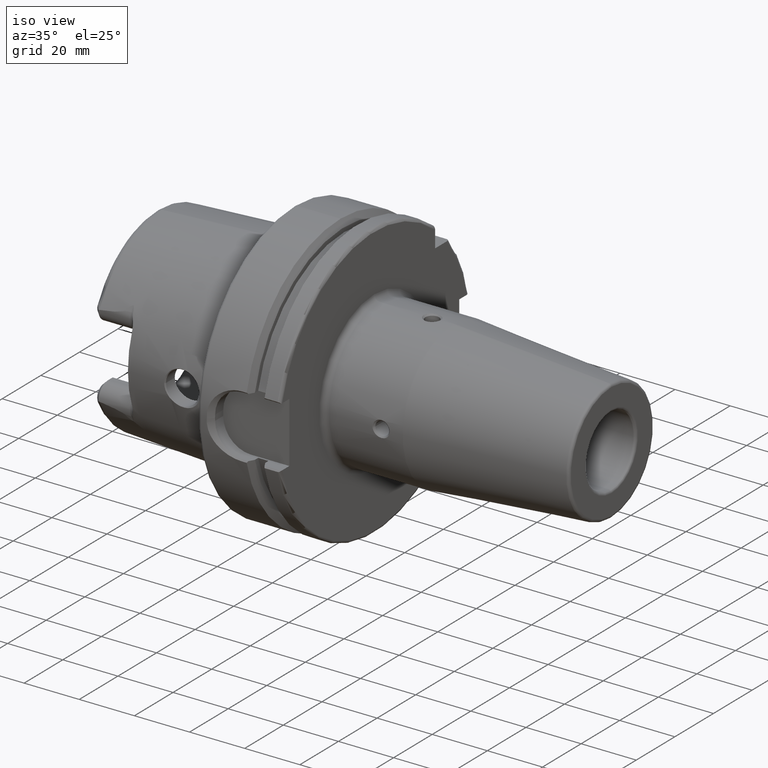
[diagram: clean part render]
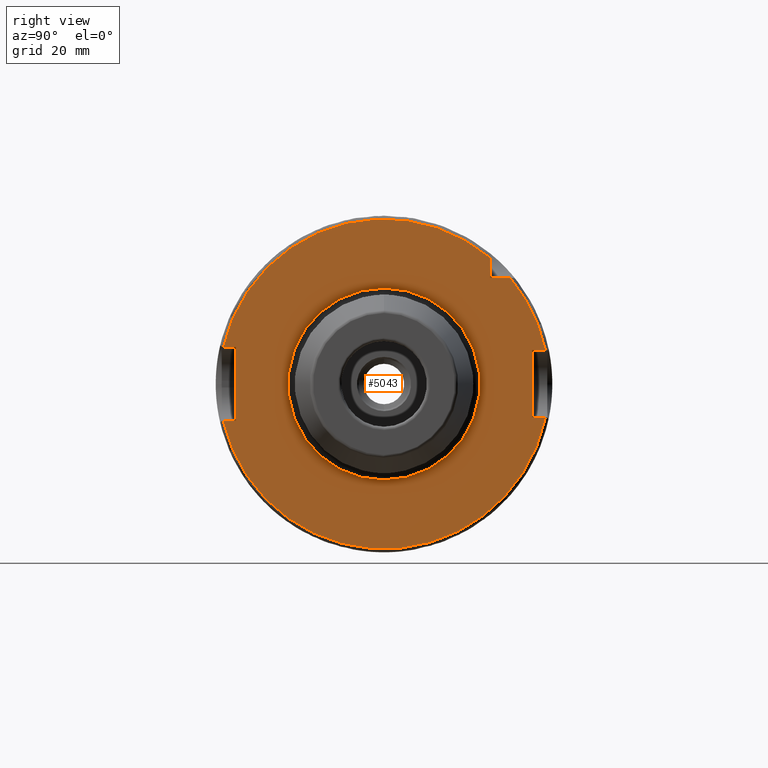
[diagram: tour spotlight — one face highlighted and labeled with its STEP entity id]
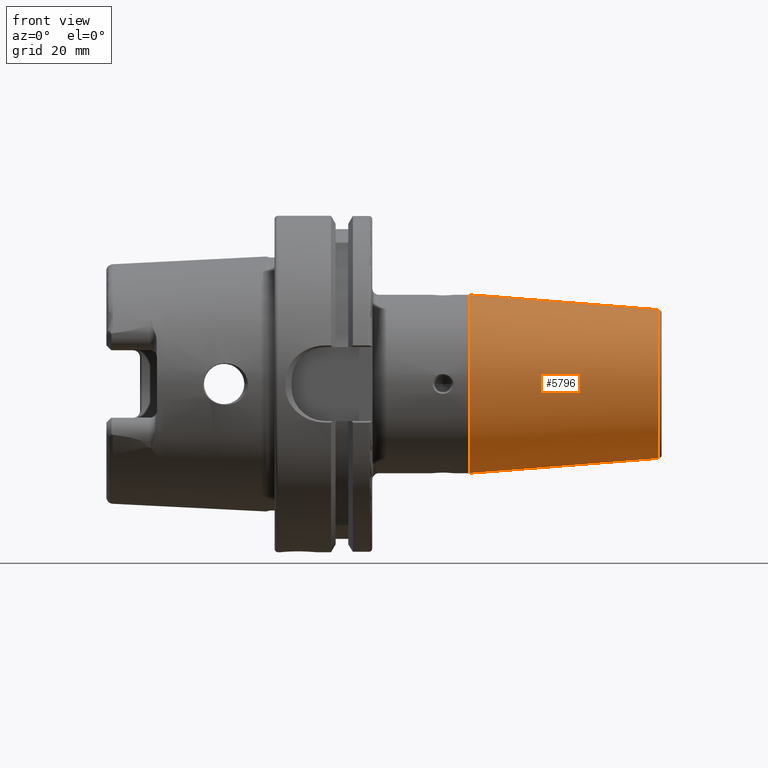
[diagram: tour spotlight — one face highlighted and labeled with its STEP entity id]
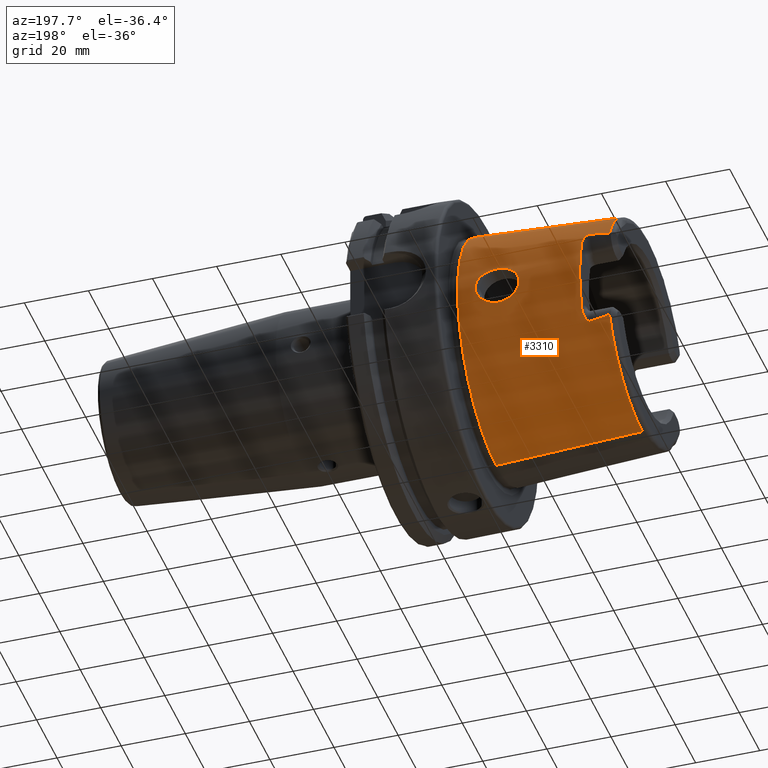
[diagram: tour spotlight — one face highlighted and labeled with its STEP entity id]
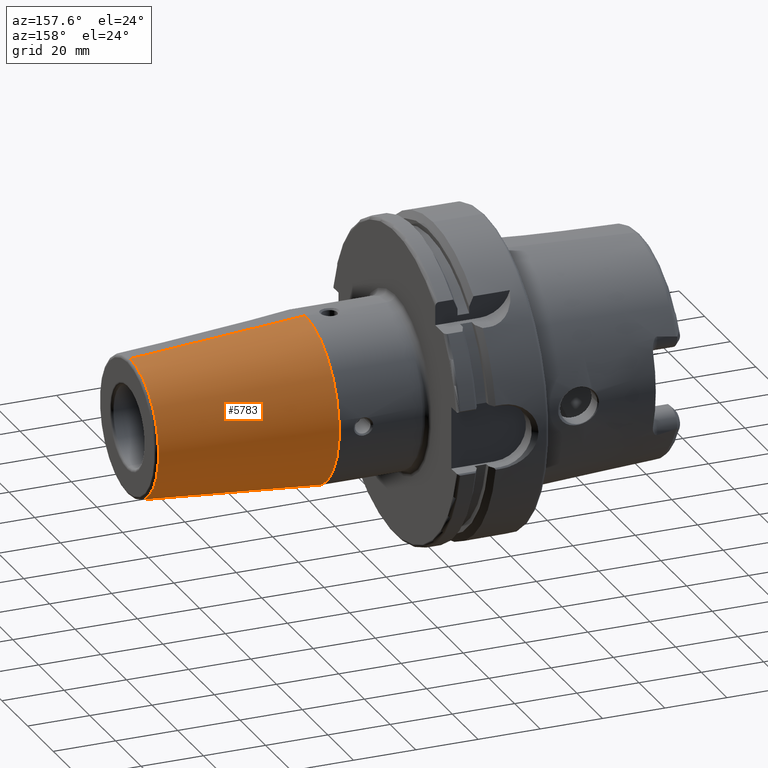
[diagram: tour spotlight — one face highlighted and labeled with its STEP entity id]
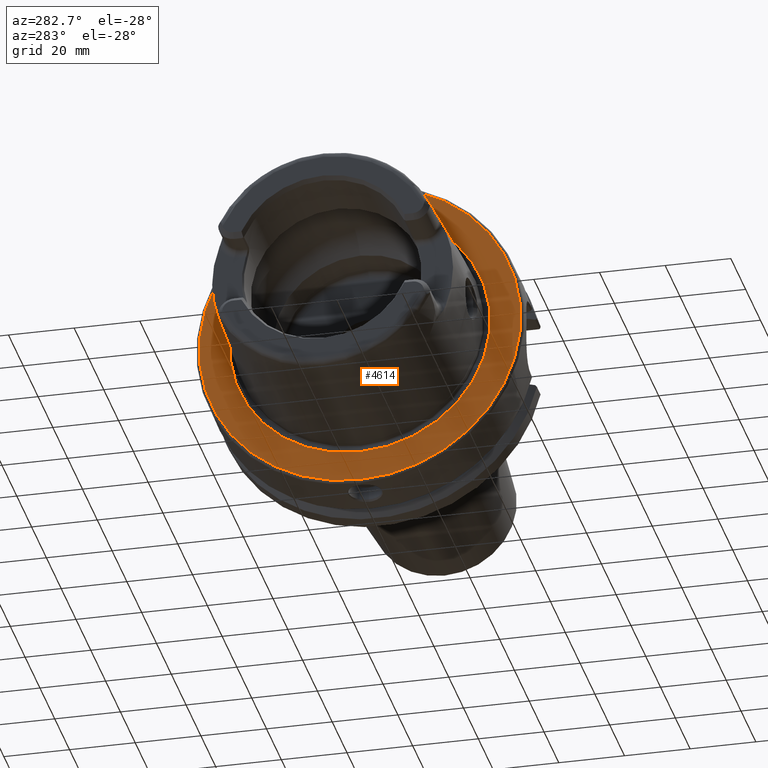
[diagram: tour spotlight — one face highlighted and labeled with its STEP entity id]
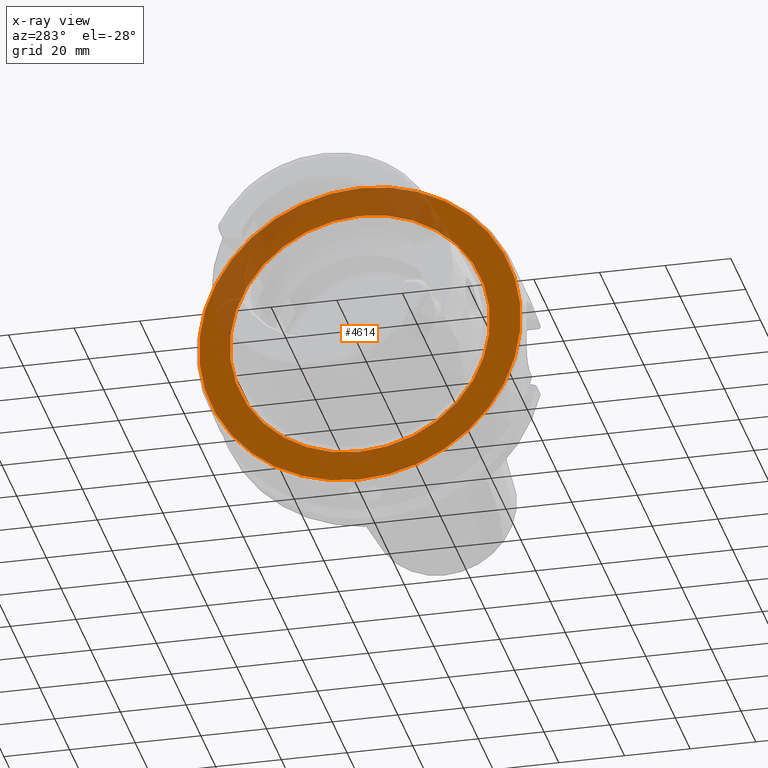
[diagram: x-ray of the same camera — body ghosted, this tour face saturated]
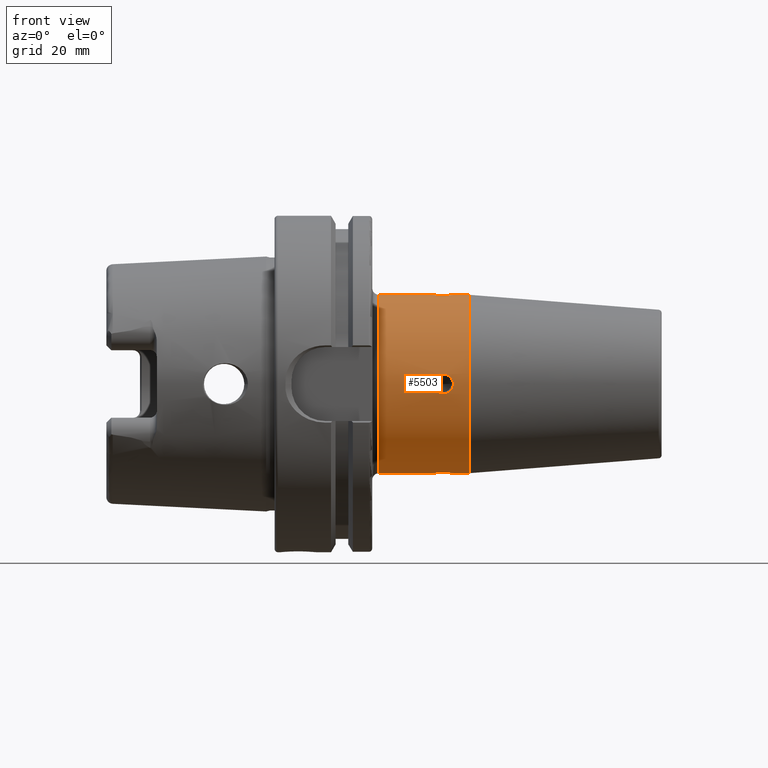
[diagram: tour spotlight — one face highlighted and labeled with its STEP entity id]
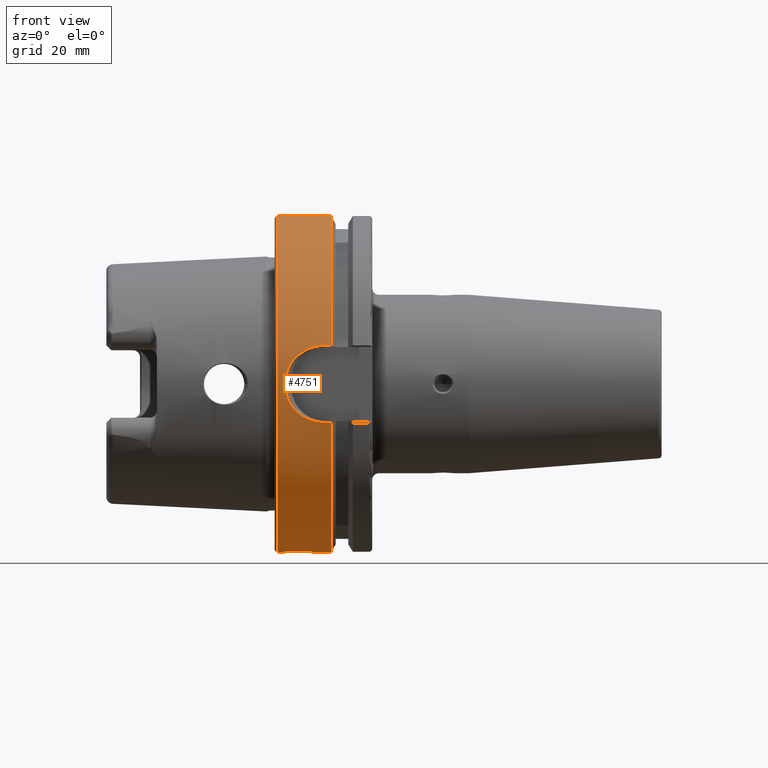
[diagram: tour spotlight — one face highlighted and labeled with its STEP entity id]
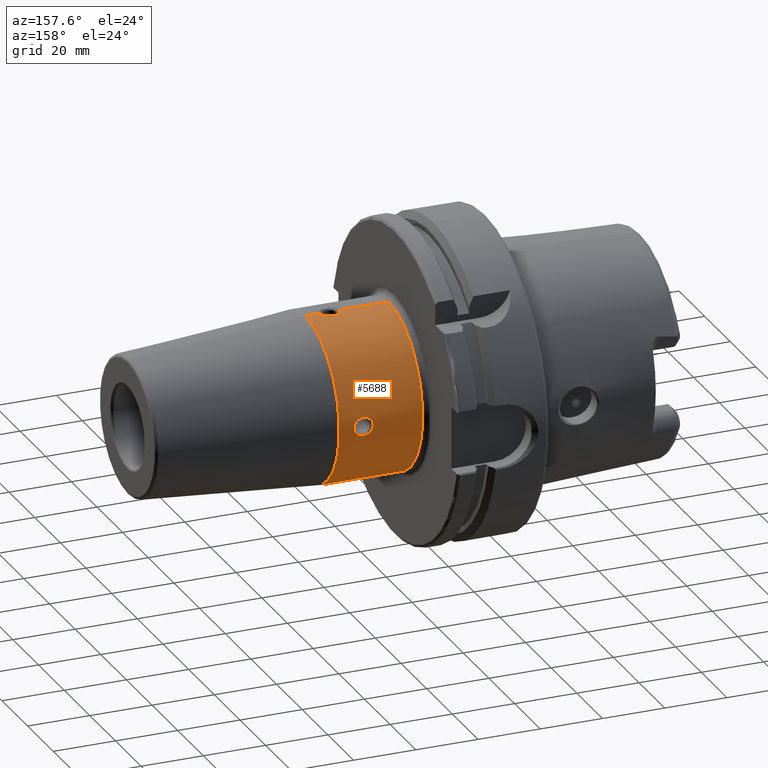
[diagram: tour spotlight — one face highlighted and labeled with its STEP entity id]
A machine part: a face-by-face anatomy tour. The part has 212 B-rep faces; the first image is the clean iso view, then the 8 largest visible faces are spotlighted one at a time (largest first), each with its STEP entity span.

Face 1 — right view, entity #5043. In plain terms, the highlighted planar face has unit normal (1, 0, 0).
Definition (entity closure, byte-faithful):
#1484=CARTESIAN_POINT('',(2.9E1,0.E0,0.E0));
#1485=DIRECTION('',(1.E0,0.E0,0.E0));
#1486=DIRECTION('',(0.E0,-9.744764396990E-1,-2.244897959184E-1));
#1487=AXIS2_PLACEMENT_3D('',#1484,#1485,#1486);
#1627=CARTESIAN_POINT('',(2.9E1,4.796873982085E1,-1.E1));
#1645=DIRECTION('',(0.E0,1.E0,0.E0));
#1646=VECTOR('',#1645,3.749345545253E0);
#1647=CARTESIAN_POINT('',(2.9E1,-4.774934554525E1,-1.1E1));
#1648=LINE('',#1647,#1646);
#1649=DIRECTION('',(0.E0,0.E0,1.E0));
#1650=VECTOR('',#1649,2.2E1);
#1651=CARTESIAN_POINT('',(2.9E1,-4.4E1,-1.1E1));
#1652=LINE('',#1651,#1650);
#1653=DIRECTION('',(0.E0,1.E0,0.E0));
#1654=VECTOR('',#1653,3.749345545253E0);
#1655=CARTESIAN_POINT('',(2.9E1,-4.774934554525E1,1.1E1));
#1656=LINE('',#1655,#1654);
#1657=DIRECTION('',(0.E0,0.E0,-1.E0));
#1658=VECTOR('',#1657,6.033318531673E0);
#1659=CARTESIAN_POINT('',(2.9E1,3.15E1,3.753331853167E1));
#1660=LINE('',#1659,#1658);
#1661=DIRECTION('',(0.E0,-1.E0,0.E0));
#1662=VECTOR('',#1661,6.033318531673E0);
#1663=CARTESIAN_POINT('',(2.9E1,3.753331853167E1,3.15E1));
#1664=LINE('',#1663,#1662);
#1665=DIRECTION('',(0.E0,-1.E0,0.E0));
#1666=VECTOR('',#1665,3.968739820846E0);
#1667=CARTESIAN_POINT('',(2.9E1,4.796873982085E1,1.E1));
#1668=LINE('',#1667,#1666);
#1669=DIRECTION('',(0.E0,0.E0,-1.E0));
#1670=VECTOR('',#1669,2.E1);
#1671=CARTESIAN_POINT('',(2.9E1,4.4E1,1.E1));
#1672=LINE('',#1671,#1670);
#1673=DIRECTION('',(0.E0,-1.E0,0.E0));
#1674=VECTOR('',#1673,3.968739820846E0);
#1675=CARTESIAN_POINT('',(2.9E1,4.796873982085E1,-1.E1));
#1676=LINE('',#1675,#1674);
#1677=CARTESIAN_POINT('',(2.9E1,0.E0,0.E0));
#1678=DIRECTION('',(1.E0,0.E0,0.E0));
#1679=DIRECTION('',(0.E0,0.E0,-1.E0));
#1680=AXIS2_PLACEMENT_3D('',#1677,#1678,#1679);
#1682=CARTESIAN_POINT('',(2.9E1,0.E0,0.E0));
#1683=DIRECTION('',(1.E0,0.E0,0.E0));
#1684=DIRECTION('',(0.E0,0.E0,1.E0));
#1685=AXIS2_PLACEMENT_3D('',#1682,#1683,#1684);
#1691=CARTESIAN_POINT('',(2.9E1,-4.774934554525E1,-1.1E1));
#1803=CARTESIAN_POINT('',(2.9E1,3.753331853167E1,3.15E1));
#1817=CARTESIAN_POINT('',(2.9E1,0.E0,0.E0));
#1818=DIRECTION('',(1.E0,0.E0,0.E0));
#1819=DIRECTION('',(0.E0,9.789538738948E-1,2.040816326531E-1));
#1820=AXIS2_PLACEMENT_3D('',#1817,#1818,#1819);
#1826=CARTESIAN_POINT('',(2.9E1,4.796873982085E1,1.E1));
#1949=CARTESIAN_POINT('',(2.9E1,3.15E1,3.753331853167E1));
#1965=CARTESIAN_POINT('',(2.9E1,0.E0,0.E0));
#1966=DIRECTION('',(1.E0,0.E0,0.E0));
#1967=DIRECTION('',(0.E0,6.428571428571E-1,7.659860924831E-1));
#1968=AXIS2_PLACEMENT_3D('',#1965,#1966,#1967);
#1970=CARTESIAN_POINT('',(2.9E1,-4.774934554525E1,1.1E1));
#2834=CARTESIAN_POINT('',(2.9E1,4.4E1,1.E1));
#2835=CARTESIAN_POINT('',(2.9E1,4.4E1,-1.E1));
#2836=VERTEX_POINT('',#2834);
#2837=VERTEX_POINT('',#2835);
#2858=CARTESIAN_POINT('',(2.9E1,-4.4E1,-1.1E1));
#2859=CARTESIAN_POINT('',(2.9E1,-4.4E1,1.1E1));
#2860=VERTEX_POINT('',#2858);
#2861=VERTEX_POINT('',#2859);
#2912=CARTESIAN_POINT('',(2.9E1,3.15E1,3.15E1));
#2914=VERTEX_POINT('',#2912);
#3139=VERTEX_POINT('',#1691);
#3140=VERTEX_POINT('',#1627);
#3145=VERTEX_POINT('',#1826);
#3146=VERTEX_POINT('',#1803);
#3149=VERTEX_POINT('',#1949);
#3150=VERTEX_POINT('',#1970);
#3213=CARTESIAN_POINT('',(2.9E1,0.E0,-2.85E1));
#3214=CARTESIAN_POINT('',(2.9E1,0.E0,2.85E1));
#3215=VERTEX_POINT('',#3213);
#3216=VERTEX_POINT('',#3214);
#5010=CARTESIAN_POINT('',(2.9E1,0.E0,0.E0));
#5011=DIRECTION('',(1.E0,0.E0,0.E0));
#5012=DIRECTION('',(0.E0,0.E0,1.E0));
#5013=AXIS2_PLACEMENT_3D('',#5010,#5011,#5012);
#5014=PLANE('',#5013);
#5015=ORIENTED_EDGE('',*,*,#4762,.F.);
#5017=ORIENTED_EDGE('',*,*,#5016,.T.);
#5019=ORIENTED_EDGE('',*,*,#5018,.T.);
#5021=ORIENTED_EDGE('',*,*,#5020,.F.);
#5023=ORIENTED_EDGE('',*,*,#5022,.F.);
#5025=ORIENTED_EDGE('',*,*,#5024,.T.);
#5027=ORIENTED_EDGE('',*,*,#5026,.F.);
#5029=ORIENTED_EDGE('',*,*,#5028,.F.);
#5031=ORIENTED_EDGE('',*,*,#5030,.T.);
#5033=ORIENTED_EDGE('',*,*,#5032,.T.);
#5034=ORIENTED_EDGE('',*,*,#4990,.F.);
#5035=EDGE_LOOP('',(#5015,#5017,#5019,#5021,#5023,#5025,#5027,#5029,#5031,#5033,
#5034));
#5036=FACE_OUTER_BOUND('',#5035,.F.);
#5038=ORIENTED_EDGE('',*,*,#5037,.T.);
#5040=ORIENTED_EDGE('',*,*,#5039,.T.);
#5041=EDGE_LOOP('',(#5038,#5040));
#5042=FACE_BOUND('',#5041,.F.);
#5043=ADVANCED_FACE('',(#5036,#5042),#5014,.T.);
#1488=CIRCLE('',#1487,4.9E1);
#1681=CIRCLE('',#1680,2.85E1);
#1686=CIRCLE('',#1685,2.85E1);
#1821=CIRCLE('',#1820,4.9E1);
#1969=CIRCLE('',#1968,4.9E1);
#4762=EDGE_CURVE('',#3139,#3140,#1488,.T.);
#4990=EDGE_CURVE('',#3140,#2837,#1676,.T.);
#5016=EDGE_CURVE('',#3139,#2860,#1648,.T.);
#5018=EDGE_CURVE('',#2860,#2861,#1652,.T.);
#5020=EDGE_CURVE('',#3150,#2861,#1656,.T.);
#5022=EDGE_CURVE('',#3149,#3150,#1969,.T.);
#5024=EDGE_CURVE('',#3149,#2914,#1660,.T.);
#5026=EDGE_CURVE('',#3146,#2914,#1664,.T.);
#5028=EDGE_CURVE('',#3145,#3146,#1821,.T.);
#5030=EDGE_CURVE('',#3145,#2836,#1668,.T.);
#5032=EDGE_CURVE('',#2836,#2837,#1672,.T.);
#5037=EDGE_CURVE('',#3215,#3216,#1681,.T.);
#5039=EDGE_CURVE('',#3216,#3215,#1686,.T.);

Face 2 — front view, entity #5796. In plain terms, the highlighted conical surface has half-angle 4.5 deg.
Definition (entity closure, byte-faithful):
#2158=CARTESIAN_POINT('',(5.782207868721E1,0.E0,0.E0));
#2159=DIRECTION('',(-1.E0,0.E0,0.E0));
#2160=DIRECTION('',(0.E0,0.E0,-1.E0));
#2161=AXIS2_PLACEMENT_3D('',#2158,#2159,#2160);
#2373=DIRECTION('',(-9.969173337331E-1,0.E0,-7.845909572785E-2));
#2374=VECTOR('',#2373,5.643033630266E1);
#2375=CARTESIAN_POINT('',(1.140784590957E2,0.E0,-2.207252684207E1));
#2376=LINE('',#2375,#2374);
#2377=DIRECTION('',(-9.969173337331E-1,0.E0,7.845909572785E-2));
#2378=VECTOR('',#2377,5.643033630266E1);
#2379=CARTESIAN_POINT('',(1.140784590957E2,0.E0,2.207252684207E1));
#2380=LINE('',#2379,#2378);
#2381=CARTESIAN_POINT('',(1.140784590957E2,0.E0,0.E0));
#2382=DIRECTION('',(-1.E0,0.E0,0.E0));
#2383=DIRECTION('',(0.E0,0.E0,-1.E0));
#2384=AXIS2_PLACEMENT_3D('',#2381,#2382,#2383);
#3176=CARTESIAN_POINT('',(1.140784590957E2,0.E0,-2.207252684207E1));
#3178=VERTEX_POINT('',#3176);
#3179=CARTESIAN_POINT('',(5.782207868721E1,0.E0,-2.65E1));
#3180=VERTEX_POINT('',#3179);
#3204=CARTESIAN_POINT('',(1.140784590957E2,0.E0,2.207252684207E1));
#3206=VERTEX_POINT('',#3204);
#3207=CARTESIAN_POINT('',(5.782207868721E1,0.E0,2.65E1));
#3208=VERTEX_POINT('',#3207);
#5784=CARTESIAN_POINT('',(8.595026889147E1,0.E0,0.E0));
#5785=DIRECTION('',(-1.E0,0.E0,0.E0));
#5786=DIRECTION('',(0.E0,0.E0,-1.E0));
#5787=AXIS2_PLACEMENT_3D('',#5784,#5785,#5786);
#5788=CONICAL_SURFACE('',#5787,2.428626342104E1,4.5E0);
#5789=ORIENTED_EDGE('',*,*,#5774,.T.);
#5790=ORIENTED_EDGE('',*,*,#5491,.T.);
#5791=ORIENTED_EDGE('',*,*,#5778,.F.);
#5793=ORIENTED_EDGE('',*,*,#5792,.F.);
#5794=EDGE_LOOP('',(#5789,#5790,#5791,#5793));
#5795=FACE_OUTER_BOUND('',#5794,.F.);
#5796=ADVANCED_FACE('',(#5795),#5788,.T.);
#2162=CIRCLE('',#2161,2.65E1);
#2385=CIRCLE('',#2384,2.207252684207E1);
#5491=EDGE_CURVE('',#3180,#3208,#2162,.T.);
#5774=EDGE_CURVE('',#3178,#3180,#2376,.T.);
#5778=EDGE_CURVE('',#3206,#3208,#2380,.T.);
#5792=EDGE_CURVE('',#3178,#3206,#2385,.T.);

Face 3 — auxiliary view, entity #3310. In plain terms, the highlighted conical surface has half-angle 2.868 deg.
Definition (entity closure, byte-faithful):
#2=CARTESIAN_POINT('',(-4.810007223652E1,0.E0,0.E0));
#3=DIRECTION('',(-1.E0,0.E0,0.E0));
#4=DIRECTION('',(0.E0,9.060367502718E-1,-4.231990160161E-1));
#5=AXIS2_PLACEMENT_3D('',#2,#3,#4);
#7=CARTESIAN_POINT('',(-2.500088491128E0,4.656021286601E-9,3.787396633533E1));
#8=CARTESIAN_POINT('',(-2.500088444509E0,1.888740103895E0,3.787396633766E1));
#9=CARTESIAN_POINT('',(-2.516262056837E0,5.666079603161E0,3.759267172396E1));
#10=CARTESIAN_POINT('',(-2.509761497294E0,1.120563070156E1,3.632759442673E1));
#11=CARTESIAN_POINT('',(-2.511503316973E0,1.649483625087E1,3.425192363796E1));
#12=CARTESIAN_POINT('',(-2.511036597801E0,2.141558255922E1,3.141087897888E1));
#13=CARTESIAN_POINT('',(-2.511161654810E0,2.585793792374E1,2.786823218789E1));
#14=CARTESIAN_POINT('',(-2.511128145945E0,2.972267027537E1,2.370303773769E1));
#15=CARTESIAN_POINT('',(-2.511137124397E0,3.292344714483E1,1.900836124902E1));
#16=CARTESIAN_POINT('',(-2.511134719454E0,3.538876865595E1,1.388906812416E1));
#17=CARTESIAN_POINT('',(-2.511135360772E0,3.706356354030E1,8.459516514522E0));
#18=CARTESIAN_POINT('',(-2.511135200443E0,3.791041966799E1,2.840993193301E0));
#19=CARTESIAN_POINT('',(-2.511135200443E0,3.791041966828E1,-2.840993189549E0));
#20=CARTESIAN_POINT('',(-2.511135360772E0,3.706356354113E1,-8.459516510869E0));
#21=CARTESIAN_POINT('',(-2.511134719454E0,3.538876865733E1,-1.388906812065E1));
#22=CARTESIAN_POINT('',(-2.511137124397E0,3.292344714673E1,-1.900836124573E1));
#23=CARTESIAN_POINT('',(-2.511128145943E0,2.972267027773E1,-2.370303773475E1));
#24=CARTESIAN_POINT('',(-2.511161654817E0,2.585793792634E1,-2.786823218546E1));
#25=CARTESIAN_POINT('',(-2.511036597775E0,2.141558256255E1,-3.141087897660E1));
#26=CARTESIAN_POINT('',(-2.511503317070E0,1.649483625404E1,-3.425192363652E1));
#27=CARTESIAN_POINT('',(-2.509761496931E0,1.120563070542E1,-3.632759442522E1));
#28=CARTESIAN_POINT('',(-2.516262058192E0,5.666079609415E0,-3.759267172378E1));
#29=CARTESIAN_POINT('',(-2.500088441588E0,1.888740095305E0,-3.787396633781E1));
#30=CARTESIAN_POINT('',(-2.500088491128E0,-4.656014655163E-9,
-3.787396633533E1));
#32=CARTESIAN_POINT('',(-4.810007223652E1,0.E0,0.E0));
#33=DIRECTION('',(-1.E0,0.E0,0.E0));
#34=DIRECTION('',(0.E0,0.E0,1.E0));
#35=AXIS2_PLACEMENT_3D('',#32,#33,#34);
#37=CARTESIAN_POINT('',(-4.810007223652E1,3.224696179732E1,1.506217324853E1));
#38=CARTESIAN_POINT('',(-4.760626487230E1,3.224472931149E1,1.512541041346E1));
#39=CARTESIAN_POINT('',(-4.665467110945E1,3.223778541994E1,1.525225118060E1));
#40=CARTESIAN_POINT('',(-4.533877942039E1,3.221981223612E1,1.544334127875E1));
#41=CARTESIAN_POINT('',(-4.412438849691E1,3.219380319093E1,1.563726954796E1));
#42=CARTESIAN_POINT('',(-4.300799310316E1,3.215891702196E1,1.583594315735E1));
#43=CARTESIAN_POINT('',(-4.232535112322E1,3.212865311293E1,1.597396756315E1));
#44=CARTESIAN_POINT('',(-4.2E1,3.211131498627E1,1.604513297979E1));
#46=CARTESIAN_POINT('',(-4.810007223652E1,3.224696179732E1,-1.506217324853E1));
#47=CARTESIAN_POINT('',(-4.760626487230E1,3.224472931149E1,-1.512541041346E1));
#48=CARTESIAN_POINT('',(-4.665467110945E1,3.223778541994E1,-1.525225118060E1));
#49=CARTESIAN_POINT('',(-4.533877942039E1,3.221981223612E1,-1.544334127875E1));
#50=CARTESIAN_POINT('',(-4.412438849691E1,3.219380319093E1,-1.563726954796E1));
#51=CARTESIAN_POINT('',(-4.300799310316E1,3.215891702196E1,-1.583594315735E1));
#52=CARTESIAN_POINT('',(-4.232535112322E1,3.212865311293E1,-1.597396756315E1));
#53=CARTESIAN_POINT('',(-4.2E1,3.211131498627E1,-1.604513297979E1));
#55=CARTESIAN_POINT('',(-2.137954779159E1,3.692989749565E1,0.E0));
#56=CARTESIAN_POINT('',(-2.137954779159E1,3.692989749565E1,-4.246180398721E-1));
#57=CARTESIAN_POINT('',(-2.128673759255E1,3.692005252314E1,-1.247417540255E0));
#58=CARTESIAN_POINT('',(-2.089257896192E1,3.688069882026E1,-2.419447136204E0));
#59=CARTESIAN_POINT('',(-2.027140056178E1,3.682597982695E1,-3.478413643194E0));
#60=CARTESIAN_POINT('',(-1.944186493855E1,3.676680671763E1,-4.409426948877E0));
#61=CARTESIAN_POINT('',(-1.842522739439E1,3.671629731471E1,-5.180163247037E0));
#62=CARTESIAN_POINT('',(-1.727293268232E1,3.668869696822E1,-5.749933901282E0));
#63=CARTESIAN_POINT('',(-1.604202236343E1,3.669409444634E1,-6.098969553285E0));
#64=CARTESIAN_POINT('',(-1.478114529082E1,3.673668125440E1,-6.225459200452E0));
#65=CARTESIAN_POINT('',(-1.351368939889E1,3.681704995945E1,-6.131520620636E0));
#66=CARTESIAN_POINT('',(-1.227262885671E1,3.693163859941E1,-5.817454357494E0));
#67=CARTESIAN_POINT('',(-1.107249846882E1,3.707620169114E1,-5.265601784631E0));
#68=CARTESIAN_POINT('',(-1.002347757320E1,3.722937675954E1,-4.514191614884E0));
#69=CARTESIAN_POINT('',(-9.154062426226E0,3.737449989776E1,-3.592660499843E0));
#70=CARTESIAN_POINT('',(-8.493920875559E0,3.749554337078E1,-2.535977316170E0));
#71=CARTESIAN_POINT('',(-8.055645954015E0,3.758102186138E1,-1.328261323789E0));
#72=CARTESIAN_POINT('',(-7.947522918154E0,3.760282678591E1,-4.555279431384E-1));
#73=CARTESIAN_POINT('',(-7.947522918154E0,3.760282678591E1,0.E0));
#75=CARTESIAN_POINT('',(-7.947522918154E0,3.760282678591E1,0.E0));
#76=CARTESIAN_POINT('',(-7.947522918154E0,3.760282678591E1,4.525935065173E-1));
#77=CARTESIAN_POINT('',(-8.054353449232E0,3.758128529051E1,1.320489248427E0));
#78=CARTESIAN_POINT('',(-8.487811605258E0,3.749671550305E1,2.522725444672E0));
#79=CARTESIAN_POINT('',(-9.144050264540E0,3.737626870893E1,3.579704531497E0));
#80=CARTESIAN_POINT('',(-1.001221387362E1,3.723113002214E1,4.504703122384E0));
#81=CARTESIAN_POINT('',(-1.106396004156E1,3.707731463883E1,5.260972209848E0));
#82=CARTESIAN_POINT('',(-1.226599748901E1,3.693233575334E1,5.815196264754E0));
#83=CARTESIAN_POINT('',(-1.350734652814E1,3.681754199427E1,6.130514483551E0));
#84=CARTESIAN_POINT('',(-1.477530650034E1,3.673696189276E1,6.225552715395E0));
#85=CARTESIAN_POINT('',(-1.603647877800E1,3.669419499847E1,6.100048657137E0));
#86=CARTESIAN_POINT('',(-1.726817548153E1,3.668864831222E1,5.751758224998E0));
#87=CARTESIAN_POINT('',(-1.842020004496E1,3.671611716092E1,5.183185429671E0));
#88=CARTESIAN_POINT('',(-1.943667950899E1,3.676649519479E1,4.414066375196E0));
#89=CARTESIAN_POINT('',(-2.026648949031E1,3.682558390667E1,3.485091488706E0));
#90=CARTESIAN_POINT('',(-2.088971303776E1,3.688042119238E1,2.426051736291E0));
#91=CARTESIAN_POINT('',(-2.128601042917E1,3.691997491793E1,1.251796355923E0));
#92=CARTESIAN_POINT('',(-2.137954779159E1,3.692989749565E1,4.262940102684E-1));
#93=CARTESIAN_POINT('',(-2.137954779159E1,3.692989749565E1,0.E0));
#178=CARTESIAN_POINT('',(-4.2E1,3.211131498627E1,-1.604513297979E1));
#179=CARTESIAN_POINT('',(-4.192998820414E1,3.210758402209E1,-1.606044695373E1));
#180=CARTESIAN_POINT('',(-4.179094380341E1,3.211456335701E1,-1.606207905721E1));
#181=CARTESIAN_POINT('',(-4.157898084651E1,3.217127452582E1,-1.597226834239E1));
#182=CARTESIAN_POINT('',(-4.138679375422E1,3.225597308016E1,-1.582258405135E1));
#183=CARTESIAN_POINT('',(-4.120547603417E1,3.235740712436E1,-1.563514640436E1));
#184=CARTESIAN_POINT('',(-4.103216334847E1,3.247070431858E1,-1.541888386408E1));
#185=CARTESIAN_POINT('',(-4.086240492233E1,3.259538571334E1,-1.517388279377E1));
#186=CARTESIAN_POINT('',(-4.069645020463E1,3.273072925297E1,-1.489996245237E1));
#187=CARTESIAN_POINT('',(-4.053769214860E1,3.287455034217E1,-1.459973425269E1));
#188=CARTESIAN_POINT('',(-4.038595883988E1,3.302932533535E1,-1.426564690993E1));
#189=CARTESIAN_POINT('',(-4.024440268E1,3.319735372991E1,-1.388900306311E1));
#190=CARTESIAN_POINT('',(-4.012052851809E1,3.338005349092E1,-1.346123760045E1));
#191=CARTESIAN_POINT('',(-4.002756728480E1,3.357744289008E1,-1.297480157245E1));
#192=CARTESIAN_POINT('',(-4.000000000001E1,3.371753099212E1,-1.260782905975E1));
#193=CARTESIAN_POINT('',(-4.E1,3.378887757491E1,-1.241362953540E1));
#209=CARTESIAN_POINT('',(-4.E1,0.E0,0.E0));
#210=DIRECTION('',(1.E0,0.E0,0.E0));
#211=DIRECTION('',(0.E0,9.386572714716E-1,-3.448514560120E-1));
#212=AXIS2_PLACEMENT_3D('',#209,#210,#211);
#635=DIRECTION('',(-9.987493463681E-1,-1.021037123262E-10,-4.999743122625E-2));
#636=VECTOR('',#635,4.565708494450E1);
#637=CARTESIAN_POINT('',(-2.500088491128E0,4.656021286601E-9,3.787396633533E1));
#638=LINE('',#637,#636);
#639=CARTESIAN_POINT('',(-2.500088491128E0,-4.656014655163E-9,
-3.787396633533E1));
#662=CARTESIAN_POINT('',(-2.500088491128E0,4.656021286601E-9,3.787396633533E1));
#664=DIRECTION('',(-9.987493463681E-1,1.021044836784E-10,4.999743122625E-2));
#665=VECTOR('',#664,4.565708494450E1);
#666=CARTESIAN_POINT('',(-2.500088491128E0,-4.656014655163E-9,
-3.787396633533E1));
#667=LINE('',#666,#665);
#1169=CARTESIAN_POINT('',(-4.E1,3.378887757491E1,1.241362953540E1));
#1170=CARTESIAN_POINT('',(-4.E1,3.372146355514E1,1.259712494698E1));
#1171=CARTESIAN_POINT('',(-4.002461321078E1,3.358718522381E1,1.294984660589E1));
#1172=CARTESIAN_POINT('',(-4.011492265392E1,3.338929117470E1,1.343921019691E1));
#1173=CARTESIAN_POINT('',(-4.024180767753E1,3.320009180081E1,1.388304100042E1));
#1174=CARTESIAN_POINT('',(-4.039267953825E1,3.302139422602E1,1.428339912804E1));
#1175=CARTESIAN_POINT('',(-4.055645970713E1,3.285632342277E1,1.463854358776E1));
#1176=CARTESIAN_POINT('',(-4.072395055112E1,3.270719923388E1,1.494824966393E1));
#1177=CARTESIAN_POINT('',(-4.089191642684E1,3.257279273580E1,1.521877239326E1));
#1178=CARTESIAN_POINT('',(-4.105913829846E1,3.245218730803E1,1.545463287979E1));
#1179=CARTESIAN_POINT('',(-4.123235050054E1,3.234121890838E1,1.566547892019E1));
#1180=CARTESIAN_POINT('',(-4.140908389693E1,3.224539664296E1,1.584152574741E1));
#1181=CARTESIAN_POINT('',(-4.158707923877E1,3.216887581640E1,1.597615547539E1));
#1182=CARTESIAN_POINT('',(-4.179594520284E1,3.211397864099E1,1.606269068128E1));
#1183=CARTESIAN_POINT('',(-4.193142421856E1,3.210766054803E1,1.606013284827E1));
#1184=CARTESIAN_POINT('',(-4.2E1,3.211131498627E1,1.604513297979E1));
#2824=VERTEX_POINT('',#639);
#2825=VERTEX_POINT('',#662);
#2945=CARTESIAN_POINT('',(-4.E1,3.378887757493E1,-1.241362953536E1));
#2947=VERTEX_POINT('',#2945);
#2949=CARTESIAN_POINT('',(-4.2E1,3.211131498627E1,-1.604513297979E1));
#2951=VERTEX_POINT('',#2949);
#2953=CARTESIAN_POINT('',(-4.2E1,3.211131498627E1,1.604513297979E1));
#2955=VERTEX_POINT('',#2953);
#2957=CARTESIAN_POINT('',(-4.E1,3.378887757493E1,1.241362953536E1));
#2959=VERTEX_POINT('',#2957);
#2993=CARTESIAN_POINT('',(-4.810007223652E1,0.E0,-3.559122937082E1));
#2995=VERTEX_POINT('',#2993);
#2997=CARTESIAN_POINT('',(-4.810007223652E1,3.224696179732E1,
-1.506217324853E1));
#2998=VERTEX_POINT('',#2997);
#2999=CARTESIAN_POINT('',(-4.810007223652E1,0.E0,3.559122937082E1));
#3000=CARTESIAN_POINT('',(-4.810007223652E1,3.224696179732E1,1.506217324853E1));
#3001=VERTEX_POINT('',#2999);
#3002=VERTEX_POINT('',#3000);
#3077=VERTEX_POINT('',#55);
#3078=VERTEX_POINT('',#73);
#3277=CARTESIAN_POINT('',(-2.530012460967E1,0.E0,0.E0));
#3278=DIRECTION('',(1.E0,0.E0,0.E0));
#3279=DIRECTION('',(0.E0,0.E0,1.E0));
#3280=AXIS2_PLACEMENT_3D('',#3277,#3278,#3279);
#3281=CONICAL_SURFACE('',#3280,3.673348102081E1,2.868056E0);
#3283=ORIENTED_EDGE('',*,*,#3282,.T.);
#3285=ORIENTED_EDGE('',*,*,#3284,.F.);
#3287=ORIENTED_EDGE('',*,*,#3286,.F.);
#3289=ORIENTED_EDGE('',*,*,#3288,.T.);
#3291=ORIENTED_EDGE('',*,*,#3290,.T.);
#3293=ORIENTED_EDGE('',*,*,#3292,.T.);
#3295=ORIENTED_EDGE('',*,*,#3294,.F.);
#3297=ORIENTED_EDGE('',*,*,#3296,.F.);
#3299=ORIENTED_EDGE('',*,*,#3298,.F.);
#3301=ORIENTED_EDGE('',*,*,#3300,.F.);
#3302=EDGE_LOOP('',(#3283,#3285,#3287,#3289,#3291,#3293,#3295,#3297,#3299,
#3301));
#3303=FACE_OUTER_BOUND('',#3302,.F.);
#3305=ORIENTED_EDGE('',*,*,#3304,.F.);
#3307=ORIENTED_EDGE('',*,*,#3306,.F.);
#3308=EDGE_LOOP('',(#3305,#3307));
#3309=FACE_BOUND('',#3308,.F.);
#3310=ADVANCED_FACE('',(#3303,#3309),#3281,.T.);
#6=CIRCLE('',#5,3.559122937082E1);
#31=B_SPLINE_CURVE_WITH_KNOTS('',3,(#7,#8,#9,#10,#11,#12,#13,#14,#15,#16,#17,
#18,#19,#20,#21,#22,#23,#24,#25,#26,#27,#28,#29,#30),.UNSPECIFIED.,.F.,.F.,(4,1,
1,1,1,1,1,1,1,1,1,1,1,1,1,1,1,1,1,1,1,4),(0.E0,4.761904761905E-2,
9.523809523810E-2,1.428571428571E-1,1.904761904762E-1,2.380952380952E-1,
2.857142857143E-1,3.333333333333E-1,3.809523809524E-1,4.285714285714E-1,
4.761904761905E-1,5.238095238095E-1,5.714285714286E-1,6.190476190476E-1,
6.666666666667E-1,7.142857142857E-1,7.619047619048E-1,8.095238095238E-1,
8.571428571429E-1,9.047619047619E-1,9.523809523810E-1,1.E0),.UNSPECIFIED.);
#36=CIRCLE('',#35,3.559122937082E1);
#45=B_SPLINE_CURVE_WITH_KNOTS('',3,(#37,#38,#39,#40,#41,#42,#43,#44),
.UNSPECIFIED.,.F.,.F.,(4,1,1,1,1,4),(0.E0,2.E-1,4.E-1,6.E-1,8.E-1,1.E0),
.UNSPECIFIED.);
#54=B_SPLINE_CURVE_WITH_KNOTS('',3,(#46,#47,#48,#49,#50,#51,#52,#53),
.UNSPECIFIED.,.F.,.F.,(4,1,1,1,1,4),(0.E0,2.E-1,4.E-1,6.E-1,8.E-1,1.E0),
.UNSPECIFIED.);
#74=B_SPLINE_CURVE_WITH_KNOTS('',3,(#55,#56,#57,#58,#59,#60,#61,#62,#63,#64,#65,
#66,#67,#68,#69,#70,#71,#72,#73),.UNSPECIFIED.,.F.,.F.,(4,1,1,1,1,1,1,1,1,1,1,1,
1,1,1,1,4),(0.E0,6.25E-2,1.25E-1,1.875E-1,2.5E-1,3.125E-1,3.75E-1,4.375E-1,
5.E-1,5.625E-1,6.25E-1,6.875E-1,7.5E-1,8.125E-1,8.75E-1,9.375E-1,1.E0),
.UNSPECIFIED.);
#94=B_SPLINE_CURVE_WITH_KNOTS('',3,(#75,#76,#77,#78,#79,#80,#81,#82,#83,#84,#85,
#86,#87,#88,#89,#90,#91,#92,#93),.UNSPECIFIED.,.F.,.F.,(4,1,1,1,1,1,1,1,1,1,1,1,
1,1,1,1,4),(0.E0,6.25E-2,1.25E-1,1.875E-1,2.5E-1,3.125E-1,3.75E-1,4.375E-1,
5.E-1,5.625E-1,6.25E-1,6.875E-1,7.5E-1,8.125E-1,8.75E-1,9.375E-1,1.E0),
.UNSPECIFIED.);
#194=B_SPLINE_CURVE_WITH_KNOTS('',3,(#178,#179,#180,#181,#182,#183,#184,#185,
#186,#187,#188,#189,#190,#191,#192,#193),.UNSPECIFIED.,.F.,.F.,(4,1,1,1,1,1,1,1,
1,1,1,1,1,4),(0.E0,7.692307692308E-2,1.538461538462E-1,2.307692307692E-1,
3.076923076923E-1,3.846153846154E-1,4.615384615385E-1,5.384615384615E-1,
6.153846153846E-1,6.923076923077E-1,7.692307692308E-1,8.461538461538E-1,
9.230769230769E-1,1.E0),.UNSPECIFIED.);
#213=CIRCLE('',#212,3.599703385023E1);
#1185=B_SPLINE_CURVE_WITH_KNOTS('',3,(#1169,#1170,#1171,#1172,#1173,#1174,#1175,
#1176,#1177,#1178,#1179,#1180,#1181,#1182,#1183,#1184),.UNSPECIFIED.,.F.,.F.,(4,
1,1,1,1,1,1,1,1,1,1,1,1,4),(0.E0,7.692307692308E-2,1.538461538462E-1,
2.307692307692E-1,3.076923076923E-1,3.846153846154E-1,4.615384615385E-1,
5.384615384615E-1,6.153846153846E-1,6.923076923077E-1,7.692307692308E-1,
8.461538461538E-1,9.230769230769E-1,1.E0),.UNSPECIFIED.);
#3282=EDGE_CURVE('',#2998,#2995,#6,.T.);
#3284=EDGE_CURVE('',#2824,#2995,#667,.T.);
#3286=EDGE_CURVE('',#2825,#2824,#31,.T.);
#3288=EDGE_CURVE('',#2825,#3001,#638,.T.);
#3290=EDGE_CURVE('',#3001,#3002,#36,.T.);
#3292=EDGE_CURVE('',#3002,#2955,#45,.T.);
#3294=EDGE_CURVE('',#2959,#2955,#1185,.T.);
#3296=EDGE_CURVE('',#2947,#2959,#213,.T.);
#3298=EDGE_CURVE('',#2951,#2947,#194,.T.);
#3300=EDGE_CURVE('',#2998,#2951,#54,.T.);
#3304=EDGE_CURVE('',#3077,#3078,#74,.T.);
#3306=EDGE_CURVE('',#3078,#3077,#94,.T.);

Face 4 — auxiliary view, entity #5783. In plain terms, the highlighted conical surface has half-angle 4.5 deg.
Definition (entity closure, byte-faithful):
#2303=CARTESIAN_POINT('',(5.782207868721E1,0.E0,0.E0));
#2304=DIRECTION('',(1.E0,0.E0,0.E0));
#2305=DIRECTION('',(0.E0,0.E0,-1.E0));
#2306=AXIS2_PLACEMENT_3D('',#2303,#2304,#2305);
#2368=CARTESIAN_POINT('',(1.140784590957E2,0.E0,0.E0));
#2369=DIRECTION('',(1.E0,0.E0,0.E0));
#2370=DIRECTION('',(0.E0,0.E0,-1.E0));
#2371=AXIS2_PLACEMENT_3D('',#2368,#2369,#2370);
#2373=DIRECTION('',(-9.969173337331E-1,0.E0,-7.845909572785E-2));
#2374=VECTOR('',#2373,5.643033630266E1);
#2375=CARTESIAN_POINT('',(1.140784590957E2,0.E0,-2.207252684207E1));
#2376=LINE('',#2375,#2374);
#2377=DIRECTION('',(-9.969173337331E-1,0.E0,7.845909572785E-2));
#2378=VECTOR('',#2377,5.643033630266E1);
#2379=CARTESIAN_POINT('',(1.140784590957E2,0.E0,2.207252684207E1));
#2380=LINE('',#2379,#2378);
#3176=CARTESIAN_POINT('',(1.140784590957E2,0.E0,-2.207252684207E1));
#3178=VERTEX_POINT('',#3176);
#3179=CARTESIAN_POINT('',(5.782207868721E1,0.E0,-2.65E1));
#3180=VERTEX_POINT('',#3179);
#3204=CARTESIAN_POINT('',(1.140784590957E2,0.E0,2.207252684207E1));
#3206=VERTEX_POINT('',#3204);
#3207=CARTESIAN_POINT('',(5.782207868721E1,0.E0,2.65E1));
#3208=VERTEX_POINT('',#3207);
#5769=CARTESIAN_POINT('',(8.595026889147E1,0.E0,0.E0));
#5770=DIRECTION('',(-1.E0,0.E0,0.E0));
#5771=DIRECTION('',(0.E0,0.E0,-1.E0));
#5772=AXIS2_PLACEMENT_3D('',#5769,#5770,#5771);
#5773=CONICAL_SURFACE('',#5772,2.428626342104E1,4.5E0);
#5775=ORIENTED_EDGE('',*,*,#5774,.F.);
#5777=ORIENTED_EDGE('',*,*,#5776,.T.);
#5779=ORIENTED_EDGE('',*,*,#5778,.T.);
#5780=ORIENTED_EDGE('',*,*,#5672,.F.);
#5781=EDGE_LOOP('',(#5775,#5777,#5779,#5780));
#5782=FACE_OUTER_BOUND('',#5781,.F.);
#5783=ADVANCED_FACE('',(#5782),#5773,.T.);
#2307=CIRCLE('',#2306,2.65E1);
#2372=CIRCLE('',#2371,2.207252684207E1);
#5672=EDGE_CURVE('',#3180,#3208,#2307,.T.);
#5774=EDGE_CURVE('',#3178,#3180,#2376,.T.);
#5776=EDGE_CURVE('',#3178,#3206,#2372,.T.);
#5778=EDGE_CURVE('',#3206,#3208,#2380,.T.);

Face 5 — auxiliary view, entity #4614. An x-ray twin of the same camera follows (body ghosted, this face saturated) — the face is partly hidden behind the body. In plain terms, the highlighted planar face has unit normal (1, 0, 0).
Definition (entity closure, byte-faithful):
#1250=CARTESIAN_POINT('',(0.E0,0.E0,0.E0));
#1251=DIRECTION('',(1.E0,0.E0,0.E0));
#1252=DIRECTION('',(0.E0,0.E0,-1.E0));
#1253=AXIS2_PLACEMENT_3D('',#1250,#1251,#1252);
#1255=CARTESIAN_POINT('',(0.E0,0.E0,0.E0));
#1256=DIRECTION('',(1.E0,0.E0,0.E0));
#1257=DIRECTION('',(0.E0,0.E0,1.E0));
#1258=AXIS2_PLACEMENT_3D('',#1255,#1256,#1257);
#1260=CARTESIAN_POINT('',(0.E0,0.E0,0.E0));
#1261=DIRECTION('',(-1.E0,0.E0,0.E0));
#1262=DIRECTION('',(0.E0,0.E0,-1.E0));
#1263=AXIS2_PLACEMENT_3D('',#1260,#1261,#1262);
#1265=CARTESIAN_POINT('',(0.E0,0.E0,0.E0));
#1266=DIRECTION('',(-1.E0,0.E0,0.E0));
#1267=DIRECTION('',(0.E0,0.E0,1.E0));
#1268=AXIS2_PLACEMENT_3D('',#1265,#1266,#1267);
#2816=CARTESIAN_POINT('',(0.E0,0.E0,-3.96822E1));
#2817=CARTESIAN_POINT('',(0.E0,0.E0,3.96822E1));
#2818=VERTEX_POINT('',#2816);
#2819=VERTEX_POINT('',#2817);
#3129=CARTESIAN_POINT('',(0.E0,0.E0,-4.9E1));
#3130=CARTESIAN_POINT('',(0.E0,-1.200153863164E-14,4.9E1));
#3131=VERTEX_POINT('',#3129);
#3132=VERTEX_POINT('',#3130);
#4599=CARTESIAN_POINT('',(0.E0,0.E0,0.E0));
#4600=DIRECTION('',(1.E0,0.E0,0.E0));
#4601=DIRECTION('',(0.E0,0.E0,1.E0));
#4602=AXIS2_PLACEMENT_3D('',#4599,#4600,#4601);
#4603=PLANE('',#4602);
#4605=ORIENTED_EDGE('',*,*,#4604,.F.);
#4607=ORIENTED_EDGE('',*,*,#4606,.F.);
#4608=EDGE_LOOP('',(#4605,#4607));
#4609=FACE_OUTER_BOUND('',#4608,.F.);
#4610=ORIENTED_EDGE('',*,*,#4555,.F.);
#4611=ORIENTED_EDGE('',*,*,#4540,.F.);
#4612=EDGE_LOOP('',(#4610,#4611));
#4613=FACE_BOUND('',#4612,.F.);
#4614=ADVANCED_FACE('',(#4609,#4613),#4603,.F.);
#1254=CIRCLE('',#1253,3.96822E1);
#1259=CIRCLE('',#1258,3.96822E1);
#1264=CIRCLE('',#1263,4.9E1);
#1269=CIRCLE('',#1268,4.9E1);
#4540=EDGE_CURVE('',#2819,#2818,#1259,.T.);
#4555=EDGE_CURVE('',#2818,#2819,#1254,.T.);
#4604=EDGE_CURVE('',#3131,#3132,#1264,.T.);
#4606=EDGE_CURVE('',#3132,#3131,#1269,.T.);

Face 6 — front view, entity #5503. In plain terms, the highlighted cylindrical surface (partial cylindrical patch) has radius 26.5 mm, axis along (1, 0, 0).
Definition (entity closure, byte-faithful):
#2072=CARTESIAN_POINT('',(3.1E1,0.E0,0.E0));
#2073=DIRECTION('',(-1.E0,0.E0,0.E0));
#2074=DIRECTION('',(0.E0,0.E0,-1.E0));
#2075=AXIS2_PLACEMENT_3D('',#2072,#2073,#2074);
#2082=CARTESIAN_POINT('',(5.31E1,-2.65E1,2.006926847048E-14));
#2083=CARTESIAN_POINT('',(5.31E1,-2.65E1,-2.740545613199E-1));
#2084=CARTESIAN_POINT('',(5.302297364522E1,-2.649176230116E1,
-8.029432131630E-1));
#2085=CARTESIAN_POINT('',(5.266618319265E1,-2.645652764368E1,
-1.573149235732E0));
#2086=CARTESIAN_POINT('',(5.209885251005E1,-2.640934170449E1,
-2.214204821883E0));
#2087=CARTESIAN_POINT('',(5.134125441029E1,-2.636354326929E1,
-2.694071546309E0));
#2088=CARTESIAN_POINT('',(5.047271504098E1,-2.633622778762E1,
-2.941911543009E0));
#2089=CARTESIAN_POINT('',(4.963508293968E1,-2.633555738975E1,
-2.947771968346E0));
#2090=CARTESIAN_POINT('',(4.891061441350E1,-2.635442710662E1,
-2.777209930847E0));
#2091=CARTESIAN_POINT('',(4.826692369232E1,-2.638590049025E1,
-2.466223412867E0));
#2092=CARTESIAN_POINT('',(4.770070100356E1,-2.642530164206E1,
-2.011324446469E0));
#2093=CARTESIAN_POINT('',(4.724668100528E1,-2.646491801888E1,
-1.415563267607E0));
#2094=CARTESIAN_POINT('',(4.696128572287E1,-2.649347924988E1,
-7.170644883414E-1));
#2095=CARTESIAN_POINT('',(4.69E1,-2.65E1,-2.436233096030E-1));
#2096=CARTESIAN_POINT('',(4.69E1,-2.65E1,0.E0));
#2098=CARTESIAN_POINT('',(4.69E1,-2.65E1,0.E0));
#2099=CARTESIAN_POINT('',(4.69E1,-2.65E1,2.740545613199E-1));
#2100=CARTESIAN_POINT('',(4.697702635478E1,-2.649176230116E1,
8.029432131630E-1));
#2101=CARTESIAN_POINT('',(4.733381680735E1,-2.645652764368E1,1.573149235732E0));
#2102=CARTESIAN_POINT('',(4.790114748995E1,-2.640934170449E1,2.214204821883E0));
#2103=CARTESIAN_POINT('',(4.865874558971E1,-2.636354326929E1,2.694071546309E0));
#2104=CARTESIAN_POINT('',(4.952728495902E1,-2.633622778762E1,2.941911543009E0));
#2105=CARTESIAN_POINT('',(5.036491706032E1,-2.633555738975E1,2.947771968346E0));
#2106=CARTESIAN_POINT('',(5.108938558650E1,-2.635442710662E1,2.777209930847E0));
#2107=CARTESIAN_POINT('',(5.173307630768E1,-2.638590049025E1,2.466223412867E0));
#2108=CARTESIAN_POINT('',(5.229929899644E1,-2.642530164206E1,2.011324446469E0));
#2109=CARTESIAN_POINT('',(5.275331899472E1,-2.646491801888E1,1.415563267607E0));
#2110=CARTESIAN_POINT('',(5.303871427713E1,-2.649347924988E1,
7.170644883414E-1));
#2111=CARTESIAN_POINT('',(5.31E1,-2.65E1,2.436233096030E-1));
#2112=CARTESIAN_POINT('',(5.31E1,-2.65E1,2.006926847048E-14));
#2114=CARTESIAN_POINT('',(4.69E1,0.E0,-2.65E1));
#2115=CARTESIAN_POINT('',(4.69E1,-2.729003629654E-1,-2.65E1));
#2116=CARTESIAN_POINT('',(4.697621926492E1,-8.003047423630E-1,
-2.649185216685E1));
#2117=CARTESIAN_POINT('',(4.733343042569E1,-1.573367198465E0,
-2.645653699527E1));
#2118=CARTESIAN_POINT('',(4.790254581260E1,-2.214520589149E0,
-2.640929952188E1));
#2119=CARTESIAN_POINT('',(4.865330579846E1,-2.692392940851E0,
-2.636371901179E1));
#2120=CARTESIAN_POINT('',(4.953745159606E1,-2.943742043415E0,
-2.633602699548E1));
#2121=CARTESIAN_POINT('',(5.036517508328E1,-2.947352404937E0,
-2.633560929213E1));
#2122=CARTESIAN_POINT('',(5.109467698124E1,-2.775291508174E0,
-2.635461597341E1));
#2123=CARTESIAN_POINT('',(5.173185729567E1,-2.467206224843E0,
-2.638583587856E1));
#2124=CARTESIAN_POINT('',(5.230508936702E1,-2.005383485545E0,
-2.642573473682E1));
#2125=CARTESIAN_POINT('',(5.275463911931E1,-1.414353026138E0,
-2.646505317094E1));
#2126=CARTESIAN_POINT('',(5.304394388655E1,-6.993136097282E-1,
-2.649401079117E1));
#2127=CARTESIAN_POINT('',(5.31E1,-2.361356143539E-1,-2.65E1));
#2128=CARTESIAN_POINT('',(5.31E1,0.E0,-2.65E1));
#2130=DIRECTION('',(-1.E0,0.E0,0.E0));
#2131=VECTOR('',#2130,1.59E1);
#2132=CARTESIAN_POINT('',(4.69E1,0.E0,-2.65E1));
#2133=LINE('',#2132,#2131);
#2134=DIRECTION('',(-1.E0,0.E0,0.E0));
#2135=VECTOR('',#2134,1.59E1);
#2136=CARTESIAN_POINT('',(4.69E1,0.E0,2.65E1));
#2137=LINE('',#2136,#2135);
#2138=CARTESIAN_POINT('',(5.31E1,0.E0,2.65E1));
#2139=CARTESIAN_POINT('',(5.31E1,-2.370283927048E-1,2.65E1));
#2140=CARTESIAN_POINT('',(5.304333596365E1,-7.013779926309E-1,
2.649394827365E1));
#2141=CARTESIAN_POINT('',(5.275457164693E1,-1.414199645937E0,2.646504864584E1));
#2142=CARTESIAN_POINT('',(5.230513746151E1,-2.005388018399E0,2.642573870005E1));
#2143=CARTESIAN_POINT('',(5.173184392409E1,-2.467226231717E0,2.638583320224E1));
#2144=CARTESIAN_POINT('',(5.109437676775E1,-2.775400471654E0,2.635460480881E1));
#2145=CARTESIAN_POINT('',(5.036507148321E1,-2.947361086121E0,2.633560811060E1));
#2146=CARTESIAN_POINT('',(4.953718808233E1,-2.943703512336E0,2.633603123584E1));
#2147=CARTESIAN_POINT('',(4.865322687986E1,-2.692357463794E0,2.636372316727E1));
#2148=CARTESIAN_POINT('',(4.790234595590E1,-2.214351633794E0,2.640931383677E1));
#2149=CARTESIAN_POINT('',(4.733347868636E1,-1.573374212025E0,2.645653390930E1));
#2150=CARTESIAN_POINT('',(4.697629227291E1,-8.005462910605E-1,
2.649184429353E1));
#2151=CARTESIAN_POINT('',(4.69E1,-2.730106782025E-1,2.65E1));
#2152=CARTESIAN_POINT('',(4.69E1,0.E0,2.65E1));
#2154=DIRECTION('',(-1.E0,0.E0,0.E0));
#2155=VECTOR('',#2154,4.722078687213E0);
#2156=CARTESIAN_POINT('',(5.782207868721E1,0.E0,2.65E1));
#2157=LINE('',#2156,#2155);
#2158=CARTESIAN_POINT('',(5.782207868721E1,0.E0,0.E0));
#2159=DIRECTION('',(-1.E0,0.E0,0.E0));
#2160=DIRECTION('',(0.E0,0.E0,-1.E0));
#2161=AXIS2_PLACEMENT_3D('',#2158,#2159,#2160);
#2163=DIRECTION('',(-1.E0,0.E0,0.E0));
#2164=VECTOR('',#2163,4.722078687213E0);
#2165=CARTESIAN_POINT('',(5.782207868721E1,0.E0,-2.65E1));
#2166=LINE('',#2165,#2164);
#2308=CARTESIAN_POINT('',(4.69E1,0.E0,2.65E1));
#2322=CARTESIAN_POINT('',(5.31E1,0.E0,2.65E1));
#3179=CARTESIAN_POINT('',(5.782207868721E1,0.E0,-2.65E1));
#3180=VERTEX_POINT('',#3179);
#3207=CARTESIAN_POINT('',(5.782207868721E1,0.E0,2.65E1));
#3208=VERTEX_POINT('',#3207);
#3209=CARTESIAN_POINT('',(3.1E1,0.E0,-2.65E1));
#3210=CARTESIAN_POINT('',(3.1E1,0.E0,2.65E1));
#3211=VERTEX_POINT('',#3209);
#3212=VERTEX_POINT('',#3210);
#3247=VERTEX_POINT('',#2308);
#3248=VERTEX_POINT('',#2322);
#3259=CARTESIAN_POINT('',(5.31E1,-2.65E1,2.006926847048E-14));
#3260=VERTEX_POINT('',#3259);
#3261=CARTESIAN_POINT('',(4.69E1,-2.65E1,0.E0));
#3262=VERTEX_POINT('',#3261);
#3273=CARTESIAN_POINT('',(4.69E1,0.E0,-2.65E1));
#3274=VERTEX_POINT('',#3273);
#3275=CARTESIAN_POINT('',(5.31E1,0.E0,-2.65E1));
#3276=VERTEX_POINT('',#3275);
#5475=CARTESIAN_POINT('',(2.47E1,0.E0,0.E0));
#5476=DIRECTION('',(1.E0,0.E0,0.E0));
#5477=DIRECTION('',(0.E0,0.E0,1.E0));
#5478=AXIS2_PLACEMENT_3D('',#5475,#5476,#5477);
#5479=CYLINDRICAL_SURFACE('',#5478,2.65E1);
#5481=ORIENTED_EDGE('',*,*,#5480,.F.);
#5483=ORIENTED_EDGE('',*,*,#5482,.T.);
#5484=ORIENTED_EDGE('',*,*,#5469,.T.);
#5486=ORIENTED_EDGE('',*,*,#5485,.F.);
#5488=ORIENTED_EDGE('',*,*,#5487,.F.);
#5490=ORIENTED_EDGE('',*,*,#5489,.F.);
#5492=ORIENTED_EDGE('',*,*,#5491,.F.);
#5494=ORIENTED_EDGE('',*,*,#5493,.T.);
#5495=EDGE_LOOP('',(#5481,#5483,#5484,#5486,#5488,#5490,#5492,#5494));
#5496=FACE_OUTER_BOUND('',#5495,.F.);
#5498=ORIENTED_EDGE('',*,*,#5497,.F.);
#5500=ORIENTED_EDGE('',*,*,#5499,.F.);
#5501=EDGE_LOOP('',(#5498,#5500));
#5502=FACE_BOUND('',#5501,.F.);
#5503=ADVANCED_FACE('',(#5496,#5502),#5479,.T.);
#2076=CIRCLE('',#2075,2.65E1);
#2097=B_SPLINE_CURVE_WITH_KNOTS('',3,(#2082,#2083,#2084,#2085,#2086,#2087,#2088,
#2089,#2090,#2091,#2092,#2093,#2094,#2095,#2096),.UNSPECIFIED.,.F.,.F.,(4,1,1,1,
1,1,1,1,1,1,1,1,4),(0.E0,8.333333333333E-2,1.666666666667E-1,2.5E-1,
3.333333333333E-1,4.166666666667E-1,5.E-1,5.833333333333E-1,6.666666666667E-1,
7.5E-1,8.333333333333E-1,9.166666666667E-1,1.E0),.UNSPECIFIED.);
#2113=B_SPLINE_CURVE_WITH_KNOTS('',3,(#2098,#2099,#2100,#2101,#2102,#2103,#2104,
#2105,#2106,#2107,#2108,#2109,#2110,#2111,#2112),.UNSPECIFIED.,.F.,.F.,(4,1,1,1,
1,1,1,1,1,1,1,1,4),(0.E0,8.333333333333E-2,1.666666666667E-1,2.5E-1,
3.333333333333E-1,4.166666666667E-1,5.E-1,5.833333333333E-1,6.666666666667E-1,
7.5E-1,8.333333333333E-1,9.166666666667E-1,1.E0),.UNSPECIFIED.);
#2129=B_SPLINE_CURVE_WITH_KNOTS('',3,(#2114,#2115,#2116,#2117,#2118,#2119,#2120,
#2121,#2122,#2123,#2124,#2125,#2126,#2127,#2128),.UNSPECIFIED.,.F.,.F.,(4,1,1,1,
1,1,1,1,1,1,1,1,4),(0.E0,8.333333333333E-2,1.666666666667E-1,2.5E-1,
3.333333333333E-1,4.166666666667E-1,5.E-1,5.833333333333E-1,6.666666666667E-1,
7.5E-1,8.333333333333E-1,9.166666666667E-1,1.E0),.UNSPECIFIED.);
#2153=B_SPLINE_CURVE_WITH_KNOTS('',3,(#2138,#2139,#2140,#2141,#2142,#2143,#2144,
#2145,#2146,#2147,#2148,#2149,#2150,#2151,#2152),.UNSPECIFIED.,.F.,.F.,(4,1,1,1,
1,1,1,1,1,1,1,1,4),(0.E0,8.333333333333E-2,1.666666666667E-1,2.5E-1,
3.333333333333E-1,4.166666666667E-1,5.E-1,5.833333333333E-1,6.666666666667E-1,
7.5E-1,8.333333333333E-1,9.166666666667E-1,1.E0),.UNSPECIFIED.);
#2162=CIRCLE('',#2161,2.65E1);
#5469=EDGE_CURVE('',#3211,#3212,#2076,.T.);
#5480=EDGE_CURVE('',#3274,#3276,#2129,.T.);
#5482=EDGE_CURVE('',#3274,#3211,#2133,.T.);
#5485=EDGE_CURVE('',#3247,#3212,#2137,.T.);
#5487=EDGE_CURVE('',#3248,#3247,#2153,.T.);
#5489=EDGE_CURVE('',#3208,#3248,#2157,.T.);
#5491=EDGE_CURVE('',#3180,#3208,#2162,.T.);
#5493=EDGE_CURVE('',#3180,#3276,#2166,.T.);
#5497=EDGE_CURVE('',#3260,#3262,#2097,.T.);
#5499=EDGE_CURVE('',#3262,#3260,#2113,.T.);

Face 7 — front view, entity #4751. In plain terms, the highlighted cylindrical surface (partial cylindrical patch) has radius 50 mm, axis along (1, 0, 0).
Definition (entity closure, byte-faithful):
#1285=CARTESIAN_POINT('',(1.25E1,0.E0,-5.E1));
#1302=CARTESIAN_POINT('',(1.5E0,0.E0,-5.E1));
#1395=CARTESIAN_POINT('',(1.E0,0.E0,0.E0));
#1396=DIRECTION('',(-1.E0,0.E0,0.E0));
#1397=DIRECTION('',(0.E0,0.E0,-1.E0));
#1398=AXIS2_PLACEMENT_3D('',#1395,#1396,#1397);
#1400=DIRECTION('',(-1.E0,-1.567059371289E-13,0.E0));
#1401=VECTOR('',#1400,1.575240473581E1);
#1402=CARTESIAN_POINT('',(1.675240473581E1,-1.020538999289E-14,5.E1));
#1403=LINE('',#1402,#1401);
#1404=CARTESIAN_POINT('',(1.675240473581E1,0.E0,0.E0));
#1405=DIRECTION('',(1.E0,0.E0,0.E0));
#1406=DIRECTION('',(0.E0,0.E0,1.E0));
#1407=AXIS2_PLACEMENT_3D('',#1404,#1405,#1406);
#1409=DIRECTION('',(1.E0,0.E0,0.E0));
#1410=VECTOR('',#1409,1.752404735808E0);
#1411=CARTESIAN_POINT('',(1.5E1,-4.866725793949E1,1.146725793949E1));
#1412=LINE('',#1411,#1410);
#1413=CARTESIAN_POINT('',(3.242449234641E0,-5.E1,-3.294650840407E-12));
#1414=CARTESIAN_POINT('',(3.195698626160E0,-5.E1,5.496726525140E-1));
#1415=CARTESIAN_POINT('',(3.198108672875E0,-4.998199676773E1,1.634145973803E0));
#1416=CARTESIAN_POINT('',(3.473212193996E0,-4.990375275698E1,3.229913317570E0));
#1417=CARTESIAN_POINT('',(4.001146744661E0,-4.978182243176E1,4.741692759375E0));
#1418=CARTESIAN_POINT('',(4.750889084959E0,-4.962813696275E1,6.135179899987E0));
#1419=CARTESIAN_POINT('',(5.685923258905E0,-4.945656431633E1,7.383388400570E0));
#1420=CARTESIAN_POINT('',(6.772808018734E0,-4.928030837920E1,8.473267682348E0));
#1421=CARTESIAN_POINT('',(7.971387096938E0,-4.911246630353E1,9.391752746832E0));
#1422=CARTESIAN_POINT('',(9.263198137577E0,-4.896154109661E1,1.014506900311E1));
#1423=CARTESIAN_POINT('',(1.062765257134E1,-4.883542774445E1,1.073259403525E1));
#1424=CARTESIAN_POINT('',(1.205033686891E1,-4.874013967174E1,1.115515935174E1));
#1425=CARTESIAN_POINT('',(1.351434747589E1,-4.868076398407E1,1.141016022122E1));
#1426=CARTESIAN_POINT('',(1.450196207708E1,-4.866725793949E1,1.146725793949E1));
#1427=CARTESIAN_POINT('',(1.5E1,-4.866725793949E1,1.146725793949E1));
#1429=CARTESIAN_POINT('',(1.5E1,-4.866725793949E1,-1.146725793949E1));
#1430=CARTESIAN_POINT('',(1.426284537492E1,-4.866725793949E1,
-1.146725793949E1));
#1431=CARTESIAN_POINT('',(1.280284266871E1,-4.869577412770E1,
-1.134757214403E1));
#1432=CARTESIAN_POINT('',(1.053726696753E1,-4.883429446847E1,
-1.074366768164E1));
#1433=CARTESIAN_POINT('',(8.551336985445E0,-4.903608754895E1,
-9.791235095736E0));
#1434=CARTESIAN_POINT('',(6.939682711705E0,-4.925346794232E1,
-8.635938317251E0));
#1435=CARTESIAN_POINT('',(5.743166457549E0,-4.944661638367E1,
-7.450856693894E0));
#1436=CARTESIAN_POINT('',(4.803554973365E0,-4.961795195372E1,
-6.215970666327E0));
#1437=CARTESIAN_POINT('',(4.030855658686E0,-4.977523977613E1,
-4.813180449423E0));
#1438=CARTESIAN_POINT('',(3.477728115863E0,-4.990239629529E1,
-3.259600114121E0));
#1439=CARTESIAN_POINT('',(3.195372415950E0,-4.998280024600E1,
-1.616982989273E0));
#1440=CARTESIAN_POINT('',(3.196513801491E0,-5.E1,-5.400881871914E-1));
#1441=CARTESIAN_POINT('',(3.242449234641E0,-5.E1,-3.294650840407E-12));
#1443=DIRECTION('',(1.E0,0.E0,0.E0));
#1444=VECTOR('',#1443,1.752404735808E0);
#1445=CARTESIAN_POINT('',(1.5E1,-4.866725793949E1,-1.146725793949E1));
#1446=LINE('',#1445,#1444);
#1447=CARTESIAN_POINT('',(1.675240473581E1,0.E0,0.E0));
#1448=DIRECTION('',(1.E0,0.E0,0.E0));
#1449=DIRECTION('',(0.E0,-9.733451587899E-1,-2.293451587899E-1));
#1450=AXIS2_PLACEMENT_3D('',#1447,#1448,#1449);
#1452=DIRECTION('',(-1.E0,0.E0,0.E0));
#1453=VECTOR('',#1452,4.252404735808E0);
#1454=CARTESIAN_POINT('',(1.675240473581E1,0.E0,-5.E1));
#1455=LINE('',#1454,#1453);
#1456=CARTESIAN_POINT('',(1.5E0,0.E0,-5.E1));
#1457=CARTESIAN_POINT('',(1.5E0,-3.839369724111E-1,-5.E1));
#1458=CARTESIAN_POINT('',(1.587262621390E0,-1.127059758559E0,
-4.999125825446E1));
#1459=CARTESIAN_POINT('',(1.959642641189E0,-2.185155425361E0,
-4.995564115930E1));
#1460=CARTESIAN_POINT('',(2.549390042110E0,-3.132091593471E0,
-4.990438793404E1));
#1461=CARTESIAN_POINT('',(3.326233948467E0,-3.938620596326E0,
-4.984640830668E1));
#1462=CARTESIAN_POINT('',(4.270619486322E0,-4.579597405866E0,
-4.979080203015E1));
#1463=CARTESIAN_POINT('',(5.317077737159E0,-5.014120445441E0,
-4.974828795727E1));
#1464=CARTESIAN_POINT('',(6.435022113086E0,-5.235365898843E0,
-4.972516956659E1));
#1465=CARTESIAN_POINT('',(7.561328255421E0,-5.235749274155E0,
-4.972512904275E1));
#1466=CARTESIAN_POINT('',(8.679631959113E0,-5.015076374345E0,
-4.974818935919E1));
#1467=CARTESIAN_POINT('',(9.725270354719E0,-4.581734511603E0,
-4.979060202214E1));
#1468=CARTESIAN_POINT('',(1.066949152017E1,-3.942052585473E0,
-4.984612580312E1));
#1469=CARTESIAN_POINT('',(1.144598481657E1,-3.137952588810E0,
-4.990401251474E1));
#1470=CARTESIAN_POINT('',(1.203785115570E1,-2.190665481758E0,
-4.995540611604E1));
#1471=CARTESIAN_POINT('',(1.241196825875E1,-1.131218345675E0,
-4.999118158868E1));
#1472=CARTESIAN_POINT('',(1.25E1,-3.855445001322E-1,-5.E1));
#1473=CARTESIAN_POINT('',(1.25E1,0.E0,-5.E1));
#1475=DIRECTION('',(-1.E0,-6.288053411296E-12,0.E0));
#1476=VECTOR('',#1475,5.E-1);
#1477=CARTESIAN_POINT('',(1.5E0,0.E0,-5.E1));
#1478=LINE('',#1477,#1476);
#2910=CARTESIAN_POINT('',(1.675240473581E1,0.E0,5.E1));
#2911=VERTEX_POINT('',#2910);
#3061=VERTEX_POINT('',#1285);
#3062=VERTEX_POINT('',#1302);
#3067=CARTESIAN_POINT('',(1.675240473581E1,0.E0,-5.E1));
#3068=VERTEX_POINT('',#3067);
#3108=CARTESIAN_POINT('',(1.5E1,-4.866725793949E1,-1.146725793949E1));
#3109=CARTESIAN_POINT('',(1.675240473581E1,-4.866725793949E1,
-1.146725793949E1));
#3110=VERTEX_POINT('',#3108);
#3111=VERTEX_POINT('',#3109);
#3112=VERTEX_POINT('',#1441);
#3113=VERTEX_POINT('',#1427);
#3114=CARTESIAN_POINT('',(1.675240473581E1,-4.866725793949E1,1.146725793949E1));
#3115=VERTEX_POINT('',#3114);
#3133=CARTESIAN_POINT('',(1.E0,0.E0,-5.E1));
#3134=CARTESIAN_POINT('',(1.E0,-1.224646799147E-14,5.E1));
#3135=VERTEX_POINT('',#3133);
#3136=VERTEX_POINT('',#3134);
#4726=CARTESIAN_POINT('',(0.E0,0.E0,0.E0));
#4727=DIRECTION('',(1.E0,0.E0,0.E0));
#4728=DIRECTION('',(0.E0,0.E0,1.E0));
#4729=AXIS2_PLACEMENT_3D('',#4726,#4727,#4728);
#4730=CYLINDRICAL_SURFACE('',#4729,5.E1);
#4731=ORIENTED_EDGE('',*,*,#4623,.T.);
#4732=ORIENTED_EDGE('',*,*,#4673,.F.);
#4734=ORIENTED_EDGE('',*,*,#4733,.T.);
#4736=ORIENTED_EDGE('',*,*,#4735,.F.);
#4738=ORIENTED_EDGE('',*,*,#4737,.F.);
#4740=ORIENTED_EDGE('',*,*,#4739,.F.);
#4742=ORIENTED_EDGE('',*,*,#4741,.T.);
#4744=ORIENTED_EDGE('',*,*,#4743,.T.);
#4745=ORIENTED_EDGE('',*,*,#4653,.T.);
#4747=ORIENTED_EDGE('',*,*,#4746,.F.);
#4748=ORIENTED_EDGE('',*,*,#4649,.T.);
#4749=EDGE_LOOP('',(#4731,#4732,#4734,#4736,#4738,#4740,#4742,#4744,#4745,#4747,
#4748));
#4750=FACE_OUTER_BOUND('',#4749,.F.);
#4751=ADVANCED_FACE('',(#4750),#4730,.T.);
#1399=CIRCLE('',#1398,5.E1);
#1408=CIRCLE('',#1407,5.E1);
#1428=B_SPLINE_CURVE_WITH_KNOTS('',3,(#1413,#1414,#1415,#1416,#1417,#1418,#1419,
#1420,#1421,#1422,#1423,#1424,#1425,#1426,#1427),.UNSPECIFIED.,.F.,.F.,(4,1,1,1,
1,1,1,1,1,1,1,1,4),(0.E0,8.333333333333E-2,1.666666666667E-1,2.5E-1,
3.333333333333E-1,4.166666666667E-1,5.E-1,5.833333333333E-1,6.666666666667E-1,
7.5E-1,8.333333333333E-1,9.166666666667E-1,1.E0),.UNSPECIFIED.);
#1442=B_SPLINE_CURVE_WITH_KNOTS('',3,(#1429,#1430,#1431,#1432,#1433,#1434,#1435,
#1436,#1437,#1438,#1439,#1440,#1441),.UNSPECIFIED.,.F.,.F.,(4,1,1,1,1,1,1,1,1,1,
4),(0.E0,1.E-1,2.E-1,3.E-1,4.E-1,5.E-1,6.E-1,7.E-1,8.E-1,9.E-1,1.E0),
.UNSPECIFIED.);
#1451=CIRCLE('',#1450,5.E1);
#1474=B_SPLINE_CURVE_WITH_KNOTS('',3,(#1456,#1457,#1458,#1459,#1460,#1461,#1462,
#1463,#1464,#1465,#1466,#1467,#1468,#1469,#1470,#1471,#1472,#1473),
.UNSPECIFIED.,.F.,.F.,(4,1,1,1,1,1,1,1,1,1,1,1,1,1,1,4),(0.E0,6.666666666667E-2,
1.333333333333E-1,2.E-1,2.666666666667E-1,3.333333333333E-1,4.E-1,
4.666666666667E-1,5.333333333333E-1,6.E-1,6.666666666667E-1,7.333333333333E-1,
8.E-1,8.666666666667E-1,9.333333333333E-1,1.E0),.UNSPECIFIED.);
#4623=EDGE_CURVE('',#3135,#3136,#1399,.T.);
#4649=EDGE_CURVE('',#3062,#3135,#1478,.T.);
#4653=EDGE_CURVE('',#3068,#3061,#1455,.T.);
#4673=EDGE_CURVE('',#2911,#3136,#1403,.T.);
#4733=EDGE_CURVE('',#2911,#3115,#1408,.T.);
#4735=EDGE_CURVE('',#3113,#3115,#1412,.T.);
#4737=EDGE_CURVE('',#3112,#3113,#1428,.T.);
#4739=EDGE_CURVE('',#3110,#3112,#1442,.T.);
#4741=EDGE_CURVE('',#3110,#3111,#1446,.T.);
#4743=EDGE_CURVE('',#3111,#3068,#1451,.T.);
#4746=EDGE_CURVE('',#3062,#3061,#1474,.T.);

Face 8 — auxiliary view, entity #5688. In plain terms, the highlighted cylindrical surface (partial cylindrical patch) has radius 26.5 mm, axis along (1, 0, 0).
Definition (entity closure, byte-faithful):
#2062=CARTESIAN_POINT('',(3.1E1,0.E0,0.E0));
#2063=DIRECTION('',(1.E0,0.E0,0.E0));
#2064=DIRECTION('',(0.E0,0.E0,-1.E0));
#2065=AXIS2_PLACEMENT_3D('',#2062,#2063,#2064);
#2130=DIRECTION('',(-1.E0,0.E0,0.E0));
#2131=VECTOR('',#2130,1.59E1);
#2132=CARTESIAN_POINT('',(4.69E1,0.E0,-2.65E1));
#2133=LINE('',#2132,#2131);
#2134=DIRECTION('',(-1.E0,0.E0,0.E0));
#2135=VECTOR('',#2134,1.59E1);
#2136=CARTESIAN_POINT('',(4.69E1,0.E0,2.65E1));
#2137=LINE('',#2136,#2135);
#2154=DIRECTION('',(-1.E0,0.E0,0.E0));
#2155=VECTOR('',#2154,4.722078687213E0);
#2156=CARTESIAN_POINT('',(5.782207868721E1,0.E0,2.65E1));
#2157=LINE('',#2156,#2155);
#2163=DIRECTION('',(-1.E0,0.E0,0.E0));
#2164=VECTOR('',#2163,4.722078687213E0);
#2165=CARTESIAN_POINT('',(5.782207868721E1,0.E0,-2.65E1));
#2166=LINE('',#2165,#2164);
#2255=CARTESIAN_POINT('',(4.69E1,2.65E1,2.027141713880E-14));
#2256=CARTESIAN_POINT('',(4.69E1,2.65E1,-2.436854310776E-1));
#2257=CARTESIAN_POINT('',(4.696131693178E1,2.649347591336E1,
-7.172376451996E-1));
#2258=CARTESIAN_POINT('',(4.724683920900E1,2.646490251583E1,-1.415870784335E0));
#2259=CARTESIAN_POINT('',(4.770106172933E1,2.642527241101E1,-2.011710790700E0));
#2260=CARTESIAN_POINT('',(4.826747596423E1,2.638586617733E1,-2.466586863175E0));
#2261=CARTESIAN_POINT('',(4.891140646832E1,2.635439675046E1,-2.777496380364E0));
#2262=CARTESIAN_POINT('',(4.963612257503E1,2.633553847324E1,-2.947934239291E0));
#2263=CARTESIAN_POINT('',(5.047443435307E1,2.633625509928E1,-2.941686372551E0));
#2264=CARTESIAN_POINT('',(5.134253651991E1,2.636360330580E1,-2.693444868870E0));
#2265=CARTESIAN_POINT('',(5.210106047746E1,2.640948284067E1,-2.212879074078E0));
#2266=CARTESIAN_POINT('',(5.267021092194E1,2.645689729291E1,-1.567069201768E0));
#2267=CARTESIAN_POINT('',(5.302332629629E1,2.649180833176E1,
-8.001449288352E-1));
#2268=CARTESIAN_POINT('',(5.31E1,2.65E1,-2.728867302596E-1));
#2269=CARTESIAN_POINT('',(5.31E1,2.65E1,0.E0));
#2271=CARTESIAN_POINT('',(5.31E1,2.65E1,0.E0));
#2272=CARTESIAN_POINT('',(5.31E1,2.65E1,2.436854310776E-1));
#2273=CARTESIAN_POINT('',(5.303868306822E1,2.649347591336E1,7.172376451996E-1));
#2274=CARTESIAN_POINT('',(5.275316079100E1,2.646490251583E1,1.415870784335E0));
#2275=CARTESIAN_POINT('',(5.229893827067E1,2.642527241101E1,2.011710790700E0));
#2276=CARTESIAN_POINT('',(5.173252403577E1,2.638586617733E1,2.466586863175E0));
#2277=CARTESIAN_POINT('',(5.108859353168E1,2.635439675046E1,2.777496380364E0));
#2278=CARTESIAN_POINT('',(5.036387742497E1,2.633553847324E1,2.947934239291E0));
#2279=CARTESIAN_POINT('',(4.952556564693E1,2.633625509928E1,2.941686372551E0));
#2280=CARTESIAN_POINT('',(4.865746348009E1,2.636360330580E1,2.693444868870E0));
#2281=CARTESIAN_POINT('',(4.789893952254E1,2.640948284067E1,2.212879074078E0));
#2282=CARTESIAN_POINT('',(4.732978907806E1,2.645689729291E1,1.567069201768E0));
#2283=CARTESIAN_POINT('',(4.697667370371E1,2.649180833176E1,8.001449288352E-1));
#2284=CARTESIAN_POINT('',(4.69E1,2.65E1,2.728867302596E-1));
#2285=CARTESIAN_POINT('',(4.69E1,2.65E1,2.027141713880E-14));
#2287=CARTESIAN_POINT('',(5.31E1,0.E0,-2.65E1));
#2288=CARTESIAN_POINT('',(5.31E1,2.730078773153E-1,-2.65E1));
#2289=CARTESIAN_POINT('',(5.302370924472E1,8.005384292665E-1,
-2.649184445834E1));
#2290=CARTESIAN_POINT('',(5.266652983240E1,1.573359592767E0,-2.645653472750E1));
#2291=CARTESIAN_POINT('',(5.209767399565E1,2.214333518027E0,-2.640931535189E1));
#2292=CARTESIAN_POINT('',(5.134680585873E1,2.692341822764E0,-2.636372479593E1));
#2293=CARTESIAN_POINT('',(5.046285577760E1,2.943696834954E0,-2.633603200113E1));
#2294=CARTESIAN_POINT('',(4.963497672226E1,2.947365915648E0,-2.633560755513E1));
#2295=CARTESIAN_POINT('',(4.890567767772E1,2.775419120011E0,-2.635460279884E1));
#2296=CARTESIAN_POINT('',(4.826820636206E1,2.467258281206E0,-2.638583015531E1));
#2297=CARTESIAN_POINT('',(4.769489586594E1,2.005424120814E0,-2.642573596937E1));
#2298=CARTESIAN_POINT('',(4.724544096339E1,1.414225914507E0,-2.646504739617E1));
#2299=CARTESIAN_POINT('',(4.695666404181E1,7.013837448016E-1,
-2.649394826360E1));
#2300=CARTESIAN_POINT('',(4.69E1,2.370296849158E-1,-2.65E1));
#2301=CARTESIAN_POINT('',(4.69E1,0.E0,-2.65E1));
#2303=CARTESIAN_POINT('',(5.782207868721E1,0.E0,0.E0));
#2304=DIRECTION('',(1.E0,0.E0,0.E0));
#2305=DIRECTION('',(0.E0,0.E0,-1.E0));
#2306=AXIS2_PLACEMENT_3D('',#2303,#2304,#2305);
#2308=CARTESIAN_POINT('',(4.69E1,0.E0,2.65E1));
#2309=CARTESIAN_POINT('',(4.69E1,2.361344716205E-1,2.65E1));
#2310=CARTESIAN_POINT('',(4.695605621259E1,6.993082045312E-1,2.649401079036E1));
#2311=CARTESIAN_POINT('',(4.724534830837E1,1.414326766061E0,2.646505441766E1));
#2312=CARTESIAN_POINT('',(4.769487727850E1,2.005347368717E0,2.642573746938E1));
#2313=CARTESIAN_POINT('',(4.826809248778E1,2.467174221253E0,2.638583892106E1));
#2314=CARTESIAN_POINT('',(4.890526862487E1,2.775272867291E0,2.635461798240E1));
#2315=CARTESIAN_POINT('',(4.963477674783E1,2.947347577808E0,2.633560984736E1));
#2316=CARTESIAN_POINT('',(5.046250457881E1,2.943748709535E0,2.633602623145E1));
#2317=CARTESIAN_POINT('',(5.134666145722E1,2.692408579422E0,2.636371738324E1));
#2318=CARTESIAN_POINT('',(5.209743423528E1,2.214538707884E0,2.640929800665E1));
#2319=CARTESIAN_POINT('',(5.266656107717E1,1.573381782654E0,2.645653617903E1));
#2320=CARTESIAN_POINT('',(5.302377920717E1,8.003126266831E-1,2.649185200105E1));
#2321=CARTESIAN_POINT('',(5.31E1,2.729031735191E-1,2.65E1));
#2322=CARTESIAN_POINT('',(5.31E1,0.E0,2.65E1));
#3179=CARTESIAN_POINT('',(5.782207868721E1,0.E0,-2.65E1));
#3180=VERTEX_POINT('',#3179);
#3207=CARTESIAN_POINT('',(5.782207868721E1,0.E0,2.65E1));
#3208=VERTEX_POINT('',#3207);
#3209=CARTESIAN_POINT('',(3.1E1,0.E0,-2.65E1));
#3210=CARTESIAN_POINT('',(3.1E1,0.E0,2.65E1));
#3211=VERTEX_POINT('',#3209);
#3212=VERTEX_POINT('',#3210);
#3235=VERTEX_POINT('',#2255);
#3236=VERTEX_POINT('',#2269);
#3247=VERTEX_POINT('',#2308);
#3248=VERTEX_POINT('',#2322);
#3273=CARTESIAN_POINT('',(4.69E1,0.E0,-2.65E1));
#3274=VERTEX_POINT('',#3273);
#3275=CARTESIAN_POINT('',(5.31E1,0.E0,-2.65E1));
#3276=VERTEX_POINT('',#3275);
#5665=CARTESIAN_POINT('',(2.47E1,0.E0,0.E0));
#5666=DIRECTION('',(1.E0,0.E0,0.E0));
#5667=DIRECTION('',(0.E0,0.E0,1.E0));
#5668=AXIS2_PLACEMENT_3D('',#5665,#5666,#5667);
#5669=CYLINDRICAL_SURFACE('',#5668,2.65E1);
#5670=ORIENTED_EDGE('',*,*,#5608,.F.);
#5671=ORIENTED_EDGE('',*,*,#5493,.F.);
#5673=ORIENTED_EDGE('',*,*,#5672,.T.);
#5674=ORIENTED_EDGE('',*,*,#5489,.T.);
#5676=ORIENTED_EDGE('',*,*,#5675,.F.);
#5677=ORIENTED_EDGE('',*,*,#5485,.T.);
#5678=ORIENTED_EDGE('',*,*,#5455,.F.);
#5679=ORIENTED_EDGE('',*,*,#5482,.F.);
#5680=EDGE_LOOP('',(#5670,#5671,#5673,#5674,#5676,#5677,#5678,#5679));
#5681=FACE_OUTER_BOUND('',#5680,.F.);
#5683=ORIENTED_EDGE('',*,*,#5682,.F.);
#5685=ORIENTED_EDGE('',*,*,#5684,.F.);
#5686=EDGE_LOOP('',(#5683,#5685));
#5687=FACE_BOUND('',#5686,.F.);
#5688=ADVANCED_FACE('',(#5681,#5687),#5669,.T.);
#2066=CIRCLE('',#2065,2.65E1);
#2270=B_SPLINE_CURVE_WITH_KNOTS('',3,(#2255,#2256,#2257,#2258,#2259,#2260,#2261,
#2262,#2263,#2264,#2265,#2266,#2267,#2268,#2269),.UNSPECIFIED.,.F.,.F.,(4,1,1,1,
1,1,1,1,1,1,1,1,4),(0.E0,8.333333333333E-2,1.666666666667E-1,2.5E-1,
3.333333333333E-1,4.166666666667E-1,5.E-1,5.833333333333E-1,6.666666666667E-1,
7.5E-1,8.333333333333E-1,9.166666666667E-1,1.E0),.UNSPECIFIED.);
#2286=B_SPLINE_CURVE_WITH_KNOTS('',3,(#2271,#2272,#2273,#2274,#2275,#2276,#2277,
#2278,#2279,#2280,#2281,#2282,#2283,#2284,#2285),.UNSPECIFIED.,.F.,.F.,(4,1,1,1,
1,1,1,1,1,1,1,1,4),(0.E0,8.333333333333E-2,1.666666666667E-1,2.5E-1,
3.333333333333E-1,4.166666666667E-1,5.E-1,5.833333333333E-1,6.666666666667E-1,
7.5E-1,8.333333333333E-1,9.166666666667E-1,1.E0),.UNSPECIFIED.);
#2302=B_SPLINE_CURVE_WITH_KNOTS('',3,(#2287,#2288,#2289,#2290,#2291,#2292,#2293,
#2294,#2295,#2296,#2297,#2298,#2299,#2300,#2301),.UNSPECIFIED.,.F.,.F.,(4,1,1,1,
1,1,1,1,1,1,1,1,4),(0.E0,8.333333333333E-2,1.666666666667E-1,2.5E-1,
3.333333333333E-1,4.166666666667E-1,5.E-1,5.833333333333E-1,6.666666666667E-1,
7.5E-1,8.333333333333E-1,9.166666666667E-1,1.E0),.UNSPECIFIED.);
#2307=CIRCLE('',#2306,2.65E1);
#2323=B_SPLINE_CURVE_WITH_KNOTS('',3,(#2308,#2309,#2310,#2311,#2312,#2313,#2314,
#2315,#2316,#2317,#2318,#2319,#2320,#2321,#2322),.UNSPECIFIED.,.F.,.F.,(4,1,1,1,
1,1,1,1,1,1,1,1,4),(0.E0,8.333333333333E-2,1.666666666667E-1,2.5E-1,
3.333333333333E-1,4.166666666667E-1,5.E-1,5.833333333333E-1,6.666666666667E-1,
7.5E-1,8.333333333333E-1,9.166666666667E-1,1.E0),.UNSPECIFIED.);
#5455=EDGE_CURVE('',#3211,#3212,#2066,.T.);
#5482=EDGE_CURVE('',#3274,#3211,#2133,.T.);
#5485=EDGE_CURVE('',#3247,#3212,#2137,.T.);
#5489=EDGE_CURVE('',#3208,#3248,#2157,.T.);
#5493=EDGE_CURVE('',#3180,#3276,#2166,.T.);
#5608=EDGE_CURVE('',#3276,#3274,#2302,.T.);
#5672=EDGE_CURVE('',#3180,#3208,#2307,.T.);
#5675=EDGE_CURVE('',#3247,#3248,#2323,.T.);
#5682=EDGE_CURVE('',#3235,#3236,#2270,.T.);
#5684=EDGE_CURVE('',#3236,#3235,#2286,.T.);